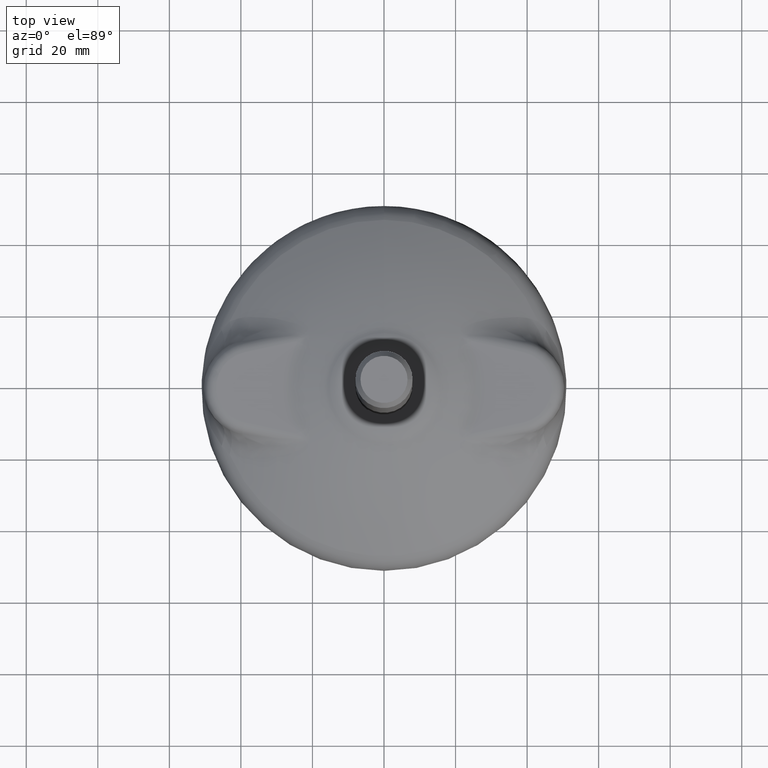
[diagram: clean part render]
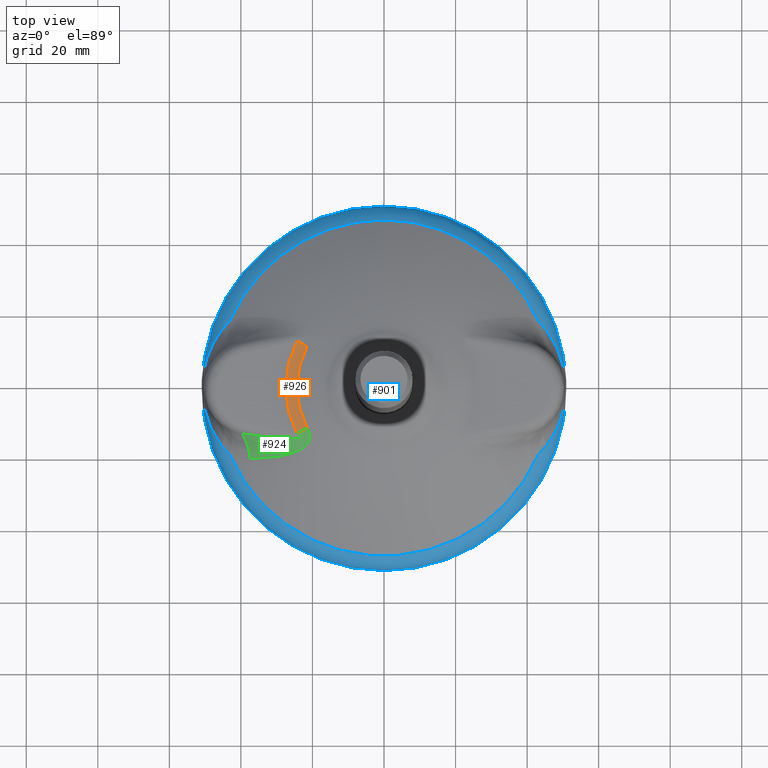
[diagram: same view with three faces highlighted in distinct colors, each labeled with its STEP entity id]
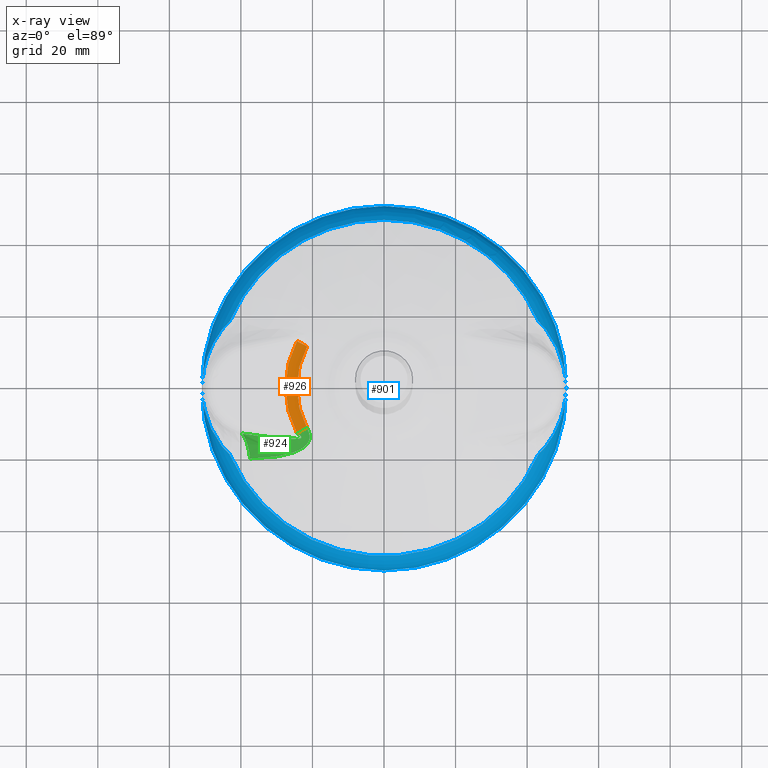
[diagram: x-ray of the same camera — body ghosted, the three highlighted faces saturated]
A machine part, top view with three faces highlighted in distinct colors.
The next image is the same camera in x-ray (body ghosted, the three faces saturated) — at least one of them is partly hidden behind the body in this view.
Their STEP definitions:

[orange] entity #926 — the highlighted toroidal blend (fillet) surface has major radius 27.517 mm and minor (blend) radius 10 mm.
#42=TOROIDAL_SURFACE('',#1044,27.5170021834659,10.);
#177=FACE_OUTER_BOUND('',#244,.T.);
#244=EDGE_LOOP('',(#709,#710,#711,#712));
#280=CIRCLE('',#989,27.5170021834659);
#293=CIRCLE('',#1007,24.3449299520576);
#318=CIRCLE('',#1042,10.);
#320=CIRCLE('',#1045,10.);
#355=VERTEX_POINT('',#1374);
#356=VERTEX_POINT('',#1376);
#380=VERTEX_POINT('',#2734);
#381=VERTEX_POINT('',#2874);
#436=EDGE_CURVE('',#355,#356,#280,.F.);
#468=EDGE_CURVE('',#380,#381,#293,.F.);
#510=EDGE_CURVE('',#355,#381,#318,.T.);
#512=EDGE_CURVE('',#356,#380,#320,.T.);
#709=ORIENTED_EDGE('',*,*,#510,.T.);
#710=ORIENTED_EDGE('',*,*,#468,.F.);
#711=ORIENTED_EDGE('',*,*,#512,.F.);
#712=ORIENTED_EDGE('',*,*,#436,.F.);
#926=ADVANCED_FACE('',(#177),#42,.F.);
#989=AXIS2_PLACEMENT_3D('',#1377,#1120,#1121);
#1007=AXIS2_PLACEMENT_3D('',#2875,#1157,#1158);
#1042=AXIS2_PLACEMENT_3D('',#5057,#1230,#1231);
#1044=AXIS2_PLACEMENT_3D('',#5161,#1234,#1235);
#1045=AXIS2_PLACEMENT_3D('',#5162,#1236,#1237);
#1120=DIRECTION('center_axis',(0.,0.,1.));
#1121=DIRECTION('ref_axis',(1.,0.,0.));
#1157=DIRECTION('center_axis',(0.,0.,-1.));
#1158=DIRECTION('ref_axis',(-1.,0.,0.));
#1230=DIRECTION('center_axis',(0.468711974674446,-0.883351054109736,2.326695E-15));
#1231=DIRECTION('ref_axis',(0.883351054109736,0.468711974674446,0.));
#1234=DIRECTION('center_axis',(0.,0.,1.));
#1235=DIRECTION('ref_axis',(-1.,1.9417460553488E-14,0.));
#1236=DIRECTION('center_axis',(-0.468711974674473,-0.883351054109722,0.));
#1237=DIRECTION('ref_axis',(0.883351054109722,-0.468711974674473,0.));
#1374=CARTESIAN_POINT('',(-24.3071728847044,-12.8975484305336,18.));
#1376=CARTESIAN_POINT('',(-24.3071728847041,12.8975484305341,18.));
#1377=CARTESIAN_POINT('Origin',(0.,-1.131577E-13,18.));
#2734=CARTESIAN_POINT('',(-21.5051195353774,11.4107601911406,18.5164374964506));
#2874=CARTESIAN_POINT('',(-21.5051195353776,-11.4107601911403,18.5164374964506));
#2875=CARTESIAN_POINT('Origin',(0.,-1.131577E-13,18.5164374964506));
#5057=CARTESIAN_POINT('Origin',(-24.3071728847046,-12.8975484305331,28.));
#5161=CARTESIAN_POINT('Origin',(0.,-1.131577E-13,28.));
#5162=CARTESIAN_POINT('Origin',(-24.3071728847039,12.8975484305344,28.));

[blue] entity #901 — the highlighted toroidal blend (fillet) surface has major radius 42.954 mm and minor (blend) radius 8 mm.
#37=TOROIDAL_SURFACE('',#998,42.9539756463875,8.);
#59=B_SPLINE_CURVE_WITH_KNOTS('',3,(#2188,#2189,#2190,#2191,#2192,#2193,
#2194,#2195,#2196,#2197,#2198,#2199,#2200,#2201,#2202,#2203,#2204,#2205,
#2206,#2207,#2208,#2209,#2210,#2211,#2212,#2213,#2214,#2215,#2216,#2217,
#2218,#2219,#2220,#2221,#2222,#2223,#2224,#2225,#2226,#2227,#2228,#2229,
#2230,#2231,#2232,#2233,#2234,#2235,#2236,#2237,#2238,#2239,#2240,#2241,
#2242,#2243,#2244,#2245,#2246,#2247,#2248,#2249,#2250,#2251,#2252,#2253,
#2254,#2255,#2256,#2257,#2258,#2259,#2260,#2261,#2262,#2263,#2264,#2265,
#2266,#2267,#2268,#2269,#2270,#2271,#2272,#2273,#2274,#2275,#2276,#2277,
#2278,#2279,#2280,#2281,#2282,#2283,#2284,#2285,#2286,#2287,#2288,#2289,
#2290,#2291,#2292,#2293,#2294,#2295,#2296,#2297,#2298,#2299),
 .UNSPECIFIED.,.F.,.F.,(4,3,3,3,3,3,3,3,3,3,3,3,3,3,3,3,3,3,3,3,3,3,3,3,
3,3,3,3,3,3,3,3,3,3,3,3,3,4),(0.,0.018222802537615,0.0367503347024783,0.0558525532941425,
0.0625,0.0687576017251877,0.0945705334077094,0.102101619982043,0.125,0.134842332414032,
0.1597757440035,0.185974091750454,0.1875,0.198937669194426,0.236816819499432,
0.249999999999999,0.262062297847113,0.310398075632263,0.324602916335422,
0.374999999999999,0.386787666647561,0.437499999999999,0.448790401114532,
0.479746953367728,0.499999999999999,0.510646529469897,0.582979699784663,
0.633748616733842,0.706626075126714,0.75,0.756430156037369,0.8125,0.817755172613899,
0.848401071251382,0.875,0.878950178210174,0.959672150929535,1.),
 .UNSPECIFIED.);
#60=B_SPLINE_CURVE_WITH_KNOTS('',3,(#2301,#2302,#2303,#2304,#2305,#2306,
#2307,#2308,#2309,#2310,#2311,#2312,#2313),.UNSPECIFIED.,.F.,.F.,(4,3,3,
3,4),(0.,0.277875799666637,0.553106511569451,0.823726431966411,1.),
 .UNSPECIFIED.);
#61=B_SPLINE_CURVE_WITH_KNOTS('',3,(#2324,#2325,#2326,#2327,#2328,#2329,
#2330,#2331,#2332,#2333,#2334,#2335,#2336),.UNSPECIFIED.,.F.,.F.,(4,3,3,
3,4),(0.,0.271047231019559,0.545065131911834,0.823187332568414,1.),
 .UNSPECIFIED.);
#62=B_SPLINE_CURVE_WITH_KNOTS('',3,(#2338,#2339,#2340,#2341,#2342,#2343,
#2344,#2345,#2346,#2347,#2348,#2349,#2350,#2351,#2352,#2353,#2354,#2355,
#2356,#2357,#2358,#2359,#2360,#2361,#2362,#2363,#2364,#2365,#2366,#2367,
#2368,#2369,#2370,#2371,#2372,#2373,#2374,#2375,#2376,#2377,#2378,#2379,
#2380,#2381,#2382,#2383,#2384,#2385,#2386,#2387,#2388,#2389,#2390,#2391,
#2392,#2393,#2394,#2395,#2396,#2397,#2398,#2399,#2400,#2401,#2402,#2403,
#2404,#2405,#2406,#2407,#2408,#2409,#2410,#2411,#2412,#2413,#2414,#2415,
#2416,#2417,#2418,#2419,#2420,#2421,#2422,#2423,#2424,#2425,#2426,#2427,
#2428,#2429,#2430,#2431,#2432,#2433,#2434,#2435,#2436,#2437,#2438,#2439,
#2440,#2441,#2442,#2443),.UNSPECIFIED.,.F.,.F.,(4,3,3,3,3,3,3,3,3,3,3,3,
3,3,3,3,3,3,3,3,3,3,3,3,3,3,3,3,3,3,3,3,3,3,3,4),(0.,0.0806810860999628,
0.121104917920797,0.125000000000001,0.151667460845958,0.182330406107497,
0.187500000000001,0.243683798407299,0.250000000000001,0.322424447799351,
0.366313820985453,0.439038724511029,0.48922374077577,0.500000000000001,
0.562500000000001,0.612932018785015,0.625000000000001,0.675168725348555,
0.726112350710725,0.737673724635573,0.750000000000001,0.784530809777315,
0.800687394774762,0.812500000000001,0.838632208422804,0.862939732890658,
0.864764416845607,0.875,0.897564139640933,0.922735946449632,0.931015970200438,
0.9375,0.956502756556265,0.975098243612388,0.993238224314951,1.),
 .UNSPECIFIED.);
#63=B_SPLINE_CURVE_WITH_KNOTS('',3,(#2445,#2446,#2447,#2448,#2449,#2450,
#2451,#2452,#2453,#2454,#2455,#2456,#2457,#2458,#2459,#2460,#2461,#2462,
#2463,#2464,#2465,#2466,#2467,#2468,#2469,#2470,#2471,#2472,#2473,#2474,
#2475,#2476,#2477,#2478,#2479,#2480,#2481,#2482,#2483,#2484,#2485,#2486,
#2487,#2488,#2489,#2490,#2491,#2492,#2493,#2494,#2495,#2496,#2497,#2498,
#2499,#2500,#2501,#2502,#2503,#2504,#2505,#2506,#2507,#2508,#2509,#2510,
#2511,#2512,#2513,#2514,#2515,#2516,#2517,#2518,#2519,#2520,#2521,#2522,
#2523,#2524,#2525,#2526,#2527,#2528,#2529,#2530,#2531,#2532,#2533,#2534,
#2535,#2536,#2537,#2538,#2539,#2540,#2541,#2542,#2543,#2544,#2545,#2546,
#2547,#2548,#2549,#2550,#2551,#2552,#2553,#2554,#2555,#2556),
 .UNSPECIFIED.,.F.,.F.,(4,3,3,3,3,3,3,3,3,3,3,3,3,3,3,3,3,3,3,3,3,3,3,3,
3,3,3,3,3,3,3,3,3,3,3,3,3,4),(0.,0.0182228025467867,0.0367503347211714,
0.0558525533225901,0.0625,0.0687576017251878,0.0945705334320472,0.102101619982048,
0.125,0.134842332414048,0.159775744032231,0.185974091823288,0.1875,0.198937669194411,
0.236816819557266,0.250000000000001,0.262062297847087,0.310398075511154,
0.324602916335428,0.375000000000001,0.386787666647563,0.437500000000001,
0.448790401114524,0.479746953367743,0.500000000000001,0.510646529469891,
0.582979699794647,0.633748616733815,0.706626075146599,0.750000000000001,
0.756430156037374,0.812500000000001,0.817755172613906,0.848401071251367,
0.875000000000001,0.878950178210172,0.959672151761753,1.),.UNSPECIFIED.);
#64=B_SPLINE_CURVE_WITH_KNOTS('',3,(#2558,#2559,#2560,#2561,#2562,#2563,
#2564,#2565,#2566,#2567,#2568,#2569,#2570),.UNSPECIFIED.,.F.,.F.,(4,3,3,
3,4),(0.,0.277875799663428,0.55310651156872,0.82372643195857,1.),
 .UNSPECIFIED.);
#65=B_SPLINE_CURVE_WITH_KNOTS('',3,(#2574,#2575,#2576,#2577,#2578,#2579,
#2580,#2581,#2582,#2583,#2584,#2585,#2586),.UNSPECIFIED.,.F.,.F.,(4,3,3,
3,4),(0.,0.271047231022452,0.545065131913572,0.823187332572719,1.),
 .UNSPECIFIED.);
#66=B_SPLINE_CURVE_WITH_KNOTS('',3,(#2587,#2588,#2589,#2590,#2591,#2592,
#2593,#2594,#2595,#2596,#2597,#2598,#2599,#2600,#2601,#2602,#2603,#2604,
#2605,#2606,#2607,#2608,#2609,#2610,#2611,#2612,#2613,#2614,#2615,#2616,
#2617,#2618,#2619,#2620,#2621,#2622,#2623,#2624,#2625,#2626,#2627,#2628,
#2629,#2630,#2631,#2632,#2633,#2634,#2635,#2636,#2637,#2638,#2639,#2640,
#2641,#2642,#2643,#2644,#2645,#2646,#2647,#2648,#2649,#2650,#2651,#2652,
#2653,#2654,#2655,#2656,#2657,#2658,#2659,#2660,#2661,#2662,#2663,#2664,
#2665,#2666,#2667,#2668,#2669,#2670,#2671,#2672,#2673,#2674,#2675,#2676,
#2677,#2678,#2679,#2680,#2681,#2682,#2683,#2684,#2685,#2686,#2687,#2688,
#2689,#2690,#2691,#2692),.UNSPECIFIED.,.F.,.F.,(4,3,3,3,3,3,3,3,3,3,3,3,
3,3,3,3,3,3,3,3,3,3,3,3,3,3,3,3,3,3,3,3,3,3,3,4),(0.,0.080681086626353,
0.121104917920788,0.125,0.151667460845902,0.182330406107491,0.1875,0.243683798407294,
0.25,0.322424447801602,0.366313820985555,0.439038724524295,0.489223740775748,
0.5,0.5625,0.612932018785009,0.625000000000001,0.675168725348559,0.726112350690797,
0.737673724635557,0.75,0.784530809746806,0.800687394774753,0.8125,0.838632208422806,
0.862939732887436,0.864764416845613,0.875,0.897564139640971,0.922735946437646,
0.93101597020044,0.9375,0.956502756555314,0.975098243609896,0.993238224310252,
1.),.UNSPECIFIED.);
#152=FACE_OUTER_BOUND('',#218,.T.);
#218=EDGE_LOOP('',(#586,#587,#588,#589,#590,#591,#592,#593,#594,#595,#596,
#597,#598,#599,#600));
#285=CIRCLE('',#999,46.9837143607323);
#286=CIRCLE('',#1000,8.);
#287=CIRCLE('',#1001,50.9491029525027);
#288=CIRCLE('',#1002,50.9491029525027);
#289=CIRCLE('',#1003,46.9837143607323);
#290=CIRCLE('',#1004,46.9837143607323);
#365=VERTEX_POINT('',#2186);
#366=VERTEX_POINT('',#2187);
#367=VERTEX_POINT('',#2300);
#368=VERTEX_POINT('',#2314);
#369=VERTEX_POINT('',#2316);
#370=VERTEX_POINT('',#2318);
#371=VERTEX_POINT('',#2321);
#372=VERTEX_POINT('',#2323);
#373=VERTEX_POINT('',#2337);
#374=VERTEX_POINT('',#2444);
#375=VERTEX_POINT('',#2557);
#376=VERTEX_POINT('',#2571);
#377=VERTEX_POINT('',#2573);
#450=EDGE_CURVE('',#365,#366,#59,.T.);
#451=EDGE_CURVE('',#366,#367,#60,.T.);
#452=EDGE_CURVE('',#368,#367,#285,.T.);
#453=EDGE_CURVE('',#368,#369,#286,.T.);
#454=EDGE_CURVE('',#369,#370,#287,.T.);
#455=EDGE_CURVE('',#370,#369,#288,.T.);
#456=EDGE_CURVE('',#371,#368,#289,.T.);
#457=EDGE_CURVE('',#371,#372,#61,.T.);
#458=EDGE_CURVE('',#372,#373,#62,.T.);
#459=EDGE_CURVE('',#373,#374,#63,.T.);
#460=EDGE_CURVE('',#374,#375,#64,.T.);
#461=EDGE_CURVE('',#376,#375,#290,.T.);
#462=EDGE_CURVE('',#376,#377,#65,.T.);
#463=EDGE_CURVE('',#377,#365,#66,.T.);
#586=ORIENTED_EDGE('',*,*,#450,.T.);
#587=ORIENTED_EDGE('',*,*,#451,.T.);
#588=ORIENTED_EDGE('',*,*,#452,.F.);
#589=ORIENTED_EDGE('',*,*,#453,.T.);
#590=ORIENTED_EDGE('',*,*,#454,.T.);
#591=ORIENTED_EDGE('',*,*,#455,.T.);
#592=ORIENTED_EDGE('',*,*,#453,.F.);
#593=ORIENTED_EDGE('',*,*,#456,.F.);
#594=ORIENTED_EDGE('',*,*,#457,.T.);
#595=ORIENTED_EDGE('',*,*,#458,.T.);
#596=ORIENTED_EDGE('',*,*,#459,.T.);
#597=ORIENTED_EDGE('',*,*,#460,.T.);
#598=ORIENTED_EDGE('',*,*,#461,.F.);
#599=ORIENTED_EDGE('',*,*,#462,.T.);
#600=ORIENTED_EDGE('',*,*,#463,.T.);
#901=ADVANCED_FACE('',(#152),#37,.T.);
#998=AXIS2_PLACEMENT_3D('',#2185,#1139,#1140);
#999=AXIS2_PLACEMENT_3D('',#2315,#1141,#1142);
#1000=AXIS2_PLACEMENT_3D('',#2317,#1143,#1144);
#1001=AXIS2_PLACEMENT_3D('',#2319,#1145,#1146);
#1002=AXIS2_PLACEMENT_3D('',#2320,#1147,#1148);
#1003=AXIS2_PLACEMENT_3D('',#2322,#1149,#1150);
#1004=AXIS2_PLACEMENT_3D('',#2572,#1151,#1152);
#1139=DIRECTION('center_axis',(0.,1.171453E-15,1.));
#1140=DIRECTION('ref_axis',(0.,-1.,1.17223431473434E-15));
#1141=DIRECTION('center_axis',(0.,1.171453E-15,1.));
#1142=DIRECTION('ref_axis',(0.,-1.,1.171453E-15));
#1143=DIRECTION('center_axis',(-1.,-1.22464679914735E-16,1.43461616680156E-31));
#1144=DIRECTION('ref_axis',(-1.22464679914735E-16,1.,-1.17114487763886E-15));
#1145=DIRECTION('center_axis',(0.,1.171453E-15,1.));
#1146=DIRECTION('ref_axis',(0.,-1.,1.171453E-15));
#1147=DIRECTION('center_axis',(0.,1.171453E-15,1.));
#1148=DIRECTION('ref_axis',(0.,-1.,1.171453E-15));
#1149=DIRECTION('center_axis',(0.,1.171453E-15,1.));
#1150=DIRECTION('ref_axis',(0.,-1.,1.171453E-15));
#1151=DIRECTION('center_axis',(0.,1.171453E-15,1.));
#1152=DIRECTION('ref_axis',(0.,-1.,1.171453E-15));
#2185=CARTESIAN_POINT('Origin',(0.,1.581797E-15,1.35028559827396));
#2186=CARTESIAN_POINT('',(-50.8753258163308,2.803829E-13,2.4693081561962));
#2187=CARTESIAN_POINT('',(-45.3902886219601,16.1682992003729,7.40400009036721));
#2188=CARTESIAN_POINT('Ctrl Pts',(-50.8753258163309,2.79212417075847E-13,
2.46930815619604));
#2189=CARTESIAN_POINT('Ctrl Pts',(-50.8753258162163,0.110607063480051,2.46930815700715));
#2190=CARTESIAN_POINT('Ctrl Pts',(-50.87457932247,0.22085541299961,2.47215559616056));
#2191=CARTESIAN_POINT('Ctrl Pts',(-50.8730941625265,0.330752815448566,2.47764053878972));
#2192=CARTESIAN_POINT('Ctrl Pts',(-50.8715841670926,0.4424879700443,2.48321720301436));
#2193=CARTESIAN_POINT('Ctrl Pts',(-50.8693105987866,0.553860409802232,2.49152017495504));
#2194=CARTESIAN_POINT('Ctrl Pts',(-50.8662903397049,0.664900840769425,2.50227986785055));
#2195=CARTESIAN_POINT('Ctrl Pts',(-50.8631763983192,0.779385520432836,2.51337330457166));
#2196=CARTESIAN_POINT('Ctrl Pts',(-50.8592687186123,0.893517328943798,2.52707811978757));
#2197=CARTESIAN_POINT('Ctrl Pts',(-50.8545949823728,1.0073528322612,2.54304904741494));
#2198=CARTESIAN_POINT('Ctrl Pts',(-50.8529685528343,1.04696684033601,2.54860682541525));
#2199=CARTESIAN_POINT('Ctrl Pts',(-50.8512494341136,1.08654516004333,2.55443860618742));
#2200=CARTESIAN_POINT('Ctrl Pts',(-50.8494390430488,1.12609077373146,2.56052853637063));
#2201=CARTESIAN_POINT('Ctrl Pts',(-50.8477348238573,1.16331720237216,2.5662613175883));
#2202=CARTESIAN_POINT('Ctrl Pts',(-50.8459504829558,1.2004990694823,2.5722201905387));
#2203=CARTESIAN_POINT('Ctrl Pts',(-50.8440871878396,1.23764505613852,2.57839190145265));
#2204=CARTESIAN_POINT('Ctrl Pts',(-50.8364009988412,1.39087417776469,2.60385052908387));
#2205=CARTESIAN_POINT('Ctrl Pts',(-50.8273476532781,1.54360911913719,2.63290110775226));
#2206=CARTESIAN_POINT('Ctrl Pts',(-50.8169539850645,1.69610558866171,2.66472881523597));
#2207=CARTESIAN_POINT('Ctrl Pts',(-50.8139215664263,1.74059740107552,2.67401475080774));
#2208=CARTESIAN_POINT('Ctrl Pts',(-50.8107750285907,1.78506891545836,2.68353675667348));
#2209=CARTESIAN_POINT('Ctrl Pts',(-50.8075149736743,1.8295264970545,2.69327371484963));
#2210=CARTESIAN_POINT('Ctrl Pts',(-50.7976027285262,1.96470043085801,2.72287908006961));
#2211=CARTESIAN_POINT('Ctrl Pts',(-50.7867017782433,2.09896831495645,2.75429451485324));
#2212=CARTESIAN_POINT('Ctrl Pts',(-50.7748078058765,2.23281726533295,2.78716920398462));
#2213=CARTESIAN_POINT('Ctrl Pts',(-50.7696954603889,2.29034910216341,2.8012996192448));
#2214=CARTESIAN_POINT('Ctrl Pts',(-50.7644013762381,2.34777699644241,2.81569595633637));
#2215=CARTESIAN_POINT('Ctrl Pts',(-50.7589276582753,2.40512148608375,2.83032224755346));
#2216=CARTESIAN_POINT('Ctrl Pts',(-50.7450611826117,2.55039129637558,2.86737477977876));
#2217=CARTESIAN_POINT('Ctrl Pts',(-50.7300441234678,2.69515702942168,2.90587191649146));
#2218=CARTESIAN_POINT('Ctrl Pts',(-50.7138852525056,2.83947272023835,2.94550660831346));
#2219=CARTESIAN_POINT('Ctrl Pts',(-50.6969066004207,2.99110991757055,2.98715207008551));
#2220=CARTESIAN_POINT('Ctrl Pts',(-50.6786671885925,3.1422504986276,3.03005322638088));
#2221=CARTESIAN_POINT('Ctrl Pts',(-50.6591939994391,3.29299673133636,3.07381677369676));
#2222=CARTESIAN_POINT('Ctrl Pts',(-50.6580597943259,3.3017768621408,3.07636575726334));
#2223=CARTESIAN_POINT('Ctrl Pts',(-50.6569214086251,3.31055566505588,3.07891765710393));
#2224=CARTESIAN_POINT('Ctrl Pts',(-50.6557788494881,3.3193331638458,3.08147239216252));
#2225=CARTESIAN_POINT('Ctrl Pts',(-50.647214629819,3.38512619402532,3.10062178367302));
#2226=CARTESIAN_POINT('Ctrl Pts',(-50.6384154546783,3.45083360254808,3.11993621156064));
#2227=CARTESIAN_POINT('Ctrl Pts',(-50.6293823112034,3.51647867762683,3.13938712054669));
#2228=CARTESIAN_POINT('Ctrl Pts',(-50.5994664434166,3.73388133400922,3.2038044325468));
#2229=CARTESIAN_POINT('Ctrl Pts',(-50.5669425548929,3.95069357194471,3.26984880011236));
#2230=CARTESIAN_POINT('Ctrl Pts',(-50.5318723842772,4.16675564378585,3.33693199739761));
#2231=CARTESIAN_POINT('Ctrl Pts',(-50.5196668203802,4.24195229601993,3.36027913932781));
#2232=CARTESIAN_POINT('Ctrl Pts',(-50.5071530309862,4.31705827665232,3.3837517316342));
#2233=CARTESIAN_POINT('Ctrl Pts',(-50.4943342551675,4.39206747523708,3.40732381705424));
#2234=CARTESIAN_POINT('Ctrl Pts',(-50.4826053789715,4.46069911496649,3.42889171678843));
#2235=CARTESIAN_POINT('Ctrl Pts',(-50.47062079107,4.52924838336984,3.4505448057103));
#2236=CARTESIAN_POINT('Ctrl Pts',(-50.4583827672784,4.59771072218007,3.47226429089651));
#2237=CARTESIAN_POINT('Ctrl Pts',(-50.4093428243075,4.87205151838042,3.55929813990896));
#2238=CARTESIAN_POINT('Ctrl Pts',(-50.356234303129,5.14501326697966,3.64744851954726));
#2239=CARTESIAN_POINT('Ctrl Pts',(-50.29905285438,5.41681574715197,3.73625815069382));
#2240=CARTESIAN_POINT('Ctrl Pts',(-50.2822484621084,5.49669262325671,3.76235738238407));
#2241=CARTESIAN_POINT('Ctrl Pts',(-50.2650925266438,5.57646962369032,3.78851342033886));
#2242=CARTESIAN_POINT('Ctrl Pts',(-50.2475854715019,5.65615289532333,3.81471436393785));
#2243=CARTESIAN_POINT('Ctrl Pts',(-50.1854725241521,5.93885965642506,3.90767219248679));
#2244=CARTESIAN_POINT('Ctrl Pts',(-50.1189358735009,6.22036604798966,4.0012109572267));
#2245=CARTESIAN_POINT('Ctrl Pts',(-50.0479758520503,6.50068655446503,4.09501065013845));
#2246=CARTESIAN_POINT('Ctrl Pts',(-50.0313786004369,6.56625234606519,4.11695000518221));
#2247=CARTESIAN_POINT('Ctrl Pts',(-50.0145389268475,6.63175499554447,4.1389046542049));
#2248=CARTESIAN_POINT('Ctrl Pts',(-49.9974566048136,6.69719662760427,4.16087105638765));
#2249=CARTESIAN_POINT('Ctrl Pts',(-49.9239658593319,6.97873647423969,4.25537385692925));
#2250=CARTESIAN_POINT('Ctrl Pts',(-49.8459820948975,7.25913842180201,4.35010060300977));
#2251=CARTESIAN_POINT('Ctrl Pts',(-49.7634639917238,7.53844802075987,4.4448677797871));
#2252=CARTESIAN_POINT('Ctrl Pts',(-49.745092474926,7.60063244807576,4.46596638376715));
#2253=CARTESIAN_POINT('Ctrl Pts',(-49.7264970974871,7.66275971469967,4.48706620930678));
#2254=CARTESIAN_POINT('Ctrl Pts',(-49.7076756537454,7.72483657135678,4.50816740345873));
#2255=CARTESIAN_POINT('Ctrl Pts',(-49.6560701349726,7.89504181360864,4.56602364902019));
#2256=CARTESIAN_POINT('Ctrl Pts',(-49.6027333488479,8.06495285647541,4.623922229906));
#2257=CARTESIAN_POINT('Ctrl Pts',(-49.5478334921058,8.23402996434397,4.68164757635487));
#2258=CARTESIAN_POINT('Ctrl Pts',(-49.5119157532824,8.34464714555019,4.71941386647434));
#2259=CARTESIAN_POINT('Ctrl Pts',(-49.4753125695062,8.45496369149038,4.75712515107837));
#2260=CARTESIAN_POINT('Ctrl Pts',(-49.4380130570635,8.5650140996239,4.79478591911235));
#2261=CARTESIAN_POINT('Ctrl Pts',(-49.4184056189509,8.62286489780953,4.81458326042168));
#2262=CARTESIAN_POINT('Ctrl Pts',(-49.398607996671,8.6806354247502,4.83436436223574));
#2263=CARTESIAN_POINT('Ctrl Pts',(-49.3786201627011,8.73832627685857,4.85412836838103));
#2264=CARTESIAN_POINT('Ctrl Pts',(-49.2428216000936,9.13028144337157,4.98840623110155));
#2265=CARTESIAN_POINT('Ctrl Pts',(-49.0982628381649,9.51858448574543,5.12188513199418));
#2266=CARTESIAN_POINT('Ctrl Pts',(-48.9448513540605,9.90327954481626,5.25436333466636));
#2267=CARTESIAN_POINT('Ctrl Pts',(-48.8371755137557,10.1732877778266,5.3473466069296));
#2268=CARTESIAN_POINT('Ctrl Pts',(-48.7251394282304,10.441519291842,5.43983696378242));
#2269=CARTESIAN_POINT('Ctrl Pts',(-48.6087238645811,10.7079977451092,5.53176588523455));
#2270=CARTESIAN_POINT('Ctrl Pts',(-48.4416123541145,11.0905206263835,5.66372745839428));
#2271=CARTESIAN_POINT('Ctrl Pts',(-48.2654786363546,11.46941895834,5.79454016392908));
#2272=CARTESIAN_POINT('Ctrl Pts',(-48.0801068568672,11.8446349802538,5.92403085447858));
#2273=CARTESIAN_POINT('Ctrl Pts',(-47.9697805390398,12.0679494577979,6.00109884789578));
#2274=CARTESIAN_POINT('Ctrl Pts',(-47.8561827805757,12.2899600408784,6.07769867438771));
#2275=CARTESIAN_POINT('Ctrl Pts',(-47.739275999132,12.5106582124244,6.15379496881591));
#2276=CARTESIAN_POINT('Ctrl Pts',(-47.7219446451283,12.5433765722304,6.16507619477064));
#2277=CARTESIAN_POINT('Ctrl Pts',(-47.7045404932922,12.5760661961864,6.17634642851798));
#2278=CARTESIAN_POINT('Ctrl Pts',(-47.6870634298822,12.608727065066,6.18760555552343));
#2279=CARTESIAN_POINT('Ctrl Pts',(-47.5346664720745,12.8935241696959,6.28578318771182));
#2280=CARTESIAN_POINT('Ctrl Pts',(-47.3767111081999,13.1761275104673,6.38311585242439));
#2281=CARTESIAN_POINT('Ctrl Pts',(-47.213048375008,13.4564975928413,6.47952078055328));
#2282=CARTESIAN_POINT('Ctrl Pts',(-47.197709008022,13.4827754112641,6.48855637798575));
#2283=CARTESIAN_POINT('Ctrl Pts',(-47.1823186149607,13.509035156747,6.49758436435568));
#2284=CARTESIAN_POINT('Ctrl Pts',(-47.1668764291442,13.5352778603835,6.50660503841123));
#2285=CARTESIAN_POINT('Ctrl Pts',(-47.076824266058,13.6883139820689,6.55920971632742));
#2286=CARTESIAN_POINT('Ctrl Pts',(-46.9849781841483,13.8408125138142,6.61157990775505));
#2287=CARTESIAN_POINT('Ctrl Pts',(-46.8917229840399,13.9921048239597,6.66347491636624));
#2288=CARTESIAN_POINT('Ctrl Pts',(-46.8107826777215,14.1234181009949,6.70851688602053));
#2289=CARTESIAN_POINT('Ctrl Pts',(-46.7286905631571,14.253978587648,6.75325452336524));
#2290=CARTESIAN_POINT('Ctrl Pts',(-46.6453537741147,14.3839144136904,6.79772426580648));
#2291=CARTESIAN_POINT('Ctrl Pts',(-46.6329775174883,14.4032110430248,6.80432841927685));
#2292=CARTESIAN_POINT('Ctrl Pts',(-46.6205749859043,14.4224920252269,6.810926023635));
#2293=CARTESIAN_POINT('Ctrl Pts',(-46.6081461502561,14.4417573520859,6.81751705161709));
#2294=CARTESIAN_POINT('Ctrl Pts',(-46.354162638944,14.8354447014663,6.95220484357356));
#2295=CARTESIAN_POINT('Ctrl Pts',(-46.0892257821214,15.2226144602278,7.08416014437246));
#2296=CARTESIAN_POINT('Ctrl Pts',(-45.8129343164146,15.6030877488243,7.21308263517687));
#2297=CARTESIAN_POINT('Ctrl Pts',(-45.6749020043547,15.793168204504,7.27749095642819));
#2298=CARTESIAN_POINT('Ctrl Pts',(-45.5340360468087,15.9815780203688,7.34114240306936));
#2299=CARTESIAN_POINT('Ctrl Pts',(-45.3902886219601,16.1682992003729,7.40400009036722));
#2300=CARTESIAN_POINT('',(-43.1479021368188,18.5937612204306,8.26123386129241));
#2301=CARTESIAN_POINT('Ctrl Pts',(-45.3902886219601,16.1682992003729,7.40400009036721));
#2302=CARTESIAN_POINT('Ctrl Pts',(-45.2032649082044,16.4112342550911,7.48578157708889));
#2303=CARTESIAN_POINT('Ctrl Pts',(-45.0106625578263,16.6490105442405,7.5674382432531));
#2304=CARTESIAN_POINT('Ctrl Pts',(-44.8123375053262,16.8817028195825,7.64854579554296));
#2305=CARTESIAN_POINT('Ctrl Pts',(-44.6159003004554,17.1121801071818,7.72888128853737));
#2306=CARTESIAN_POINT('Ctrl Pts',(-44.4138482970492,17.3376695527692,7.80867811655563));
#2307=CARTESIAN_POINT('Ctrl Pts',(-44.2060500195009,17.5582273957264,7.8874768241038));
#2308=CARTESIAN_POINT('Ctrl Pts',(-44.0017328742957,17.7750903522306,7.96495545945174));
#2309=CARTESIAN_POINT('Ctrl Pts',(-43.7918598841924,17.9871853429446,8.04146908180662));
#2310=CARTESIAN_POINT('Ctrl Pts',(-43.5763217899797,18.1945526504998,8.11653528801766));
#2311=CARTESIAN_POINT('Ctrl Pts',(-43.4359268447063,18.3296253943786,8.16543112683158));
#2312=CARTESIAN_POINT('Ctrl Pts',(-43.2931286299311,18.4626920008113,8.21371192422786));
#2313=CARTESIAN_POINT('Ctrl Pts',(-43.1479021368187,18.5937612204306,8.26123386129196));
#2314=CARTESIAN_POINT('',(-5.75384554039243E-15,46.9837143607323,8.26123386129238));
#2315=CARTESIAN_POINT('Origin',(0.,1.93553E-14,8.26123386129243));
#2316=CARTESIAN_POINT('',(-6.23946558502113E-15,50.9491029525027,1.62946181325611));
#2317=CARTESIAN_POINT('Origin',(-5.26034487860018E-15,42.9539756463875,
1.35028559827391));
#2318=CARTESIAN_POINT('',(0.,-50.9491029525027,1.62946181325623));
#2319=CARTESIAN_POINT('Origin',(0.,3.817677E-15,1.62946181325617));
#2320=CARTESIAN_POINT('Origin',(0.,3.817677E-15,1.62946181325617));
#2321=CARTESIAN_POINT('',(43.147902136819,18.5937612204301,8.26123386129241));
#2322=CARTESIAN_POINT('Origin',(0.,1.93553E-14,8.26123386129243));
#2323=CARTESIAN_POINT('',(45.3902886219603,16.1682992003723,7.4040000903672));
#2324=CARTESIAN_POINT('Ctrl Pts',(43.1479021368189,18.59376122043,8.26123386129195));
#2325=CARTESIAN_POINT('Ctrl Pts',(43.3712098015352,18.3922225016874,8.1881617064726));
#2326=CARTESIAN_POINT('Ctrl Pts',(43.5887749171552,18.1859616845277,8.11329755737715));
#2327=CARTESIAN_POINT('Ctrl Pts',(43.8006927752545,17.9749452717999,8.03715616061235));
#2328=CARTESIAN_POINT('Ctrl Pts',(44.0149332469963,17.761616125245,7.96018025632433));
#2329=CARTESIAN_POINT('Ctrl Pts',(44.2234025158967,17.5434268078087,7.88189899279334));
#2330=CARTESIAN_POINT('Ctrl Pts',(44.426220713816,17.3203309768616,7.80279629172627));
#2331=CARTESIAN_POINT('Ctrl Pts',(44.6320767668506,17.0938935679979,7.72250877318456));
#2332=CARTESIAN_POINT('Ctrl Pts',(44.8321117297822,16.8624017703644,7.64137504987025));
#2333=CARTESIAN_POINT('Ctrl Pts',(45.0264653884418,16.6257916935631,7.55985147076806));
#2334=CARTESIAN_POINT('Ctrl Pts',(45.1500232659919,16.4753698332381,7.5080238876208));
#2335=CARTESIAN_POINT('Ctrl Pts',(45.2712852336056,16.3228790345604,7.45603773751435));
#2336=CARTESIAN_POINT('Ctrl Pts',(45.3902886219603,16.1682992003723,7.40400009036722));
#2337=CARTESIAN_POINT('',(50.8753258163309,-5.135288E-14,2.46930815619605));
#2338=CARTESIAN_POINT('Ctrl Pts',(45.3902886219603,16.1682992003723,7.4040000903672));
#2339=CARTESIAN_POINT('Ctrl Pts',(45.6782656786934,15.7942304759805,7.27807385690588));
#2340=CARTESIAN_POINT('Ctrl Pts',(45.9546680718156,15.4133931075555,7.14896543257678));
#2341=CARTESIAN_POINT('Ctrl Pts',(46.2198883889244,15.0259439163735,7.01697321463073));
#2342=CARTESIAN_POINT('Ctrl Pts',(46.3527723399534,14.8318193488874,6.9508408473334));
#2343=CARTESIAN_POINT('Ctrl Pts',(46.4828496013306,14.6360357087931,6.88398465192394));
#2344=CARTESIAN_POINT('Ctrl Pts',(46.6101717342908,14.4386170945499,6.81644269978518));
#2345=CARTESIAN_POINT('Ctrl Pts',(46.6224399962551,14.4195946102429,6.80993462186381));
#2346=CARTESIAN_POINT('Ctrl Pts',(46.6346826022783,14.4005568926205,6.80342014405005));
#2347=CARTESIAN_POINT('Ctrl Pts',(46.6468995805474,14.381503949665,6.79689929261033));
#2348=CARTESIAN_POINT('Ctrl Pts',(46.730542436596,14.2510590450556,6.7522546492075));
#2349=CARTESIAN_POINT('Ctrl Pts',(46.8129315194232,14.1199839015947,6.70733982983232));
#2350=CARTESIAN_POINT('Ctrl Pts',(46.8941548704487,13.9881586698541,6.66212132632116));
#2351=CARTESIAN_POINT('Ctrl Pts',(46.9875476077941,13.8365825641161,6.6101279061009));
#2352=CARTESIAN_POINT('Ctrl Pts',(47.079529253068,13.683791767217,6.55765628453577));
#2353=CARTESIAN_POINT('Ctrl Pts',(47.1697363674864,13.5304164267166,6.50493395443748));
#2354=CARTESIAN_POINT('Ctrl Pts',(47.184944761324,13.5045582380544,6.49604527680557));
#2355=CARTESIAN_POINT('Ctrl Pts',(47.2001014492015,13.4786859589272,6.48715034792935));
#2356=CARTESIAN_POINT('Ctrl Pts',(47.2152071530494,13.4527986783694,6.47824890844709));
#2357=CARTESIAN_POINT('Ctrl Pts',(47.3793778475833,13.1714524483917,6.38150694151399));
#2358=CARTESIAN_POINT('Ctrl Pts',(47.5377276770702,12.8879869824101,6.28387565502356));
#2359=CARTESIAN_POINT('Ctrl Pts',(47.69042404649,12.6024447951482,6.18543983688551));
#2360=CARTESIAN_POINT('Ctrl Pts',(47.7075902239125,12.570344046016,6.1743736489643));
#2361=CARTESIAN_POINT('Ctrl Pts',(47.7246851466322,12.5382171346855,6.16329729807213));
#2362=CARTESIAN_POINT('Ctrl Pts',(47.7417089405577,12.5060640881292,6.15221089543004));
#2363=CARTESIAN_POINT('Ctrl Pts',(47.9369115249605,12.1373825937647,6.02508914707375));
#2364=CARTESIAN_POINT('Ctrl Pts',(48.1227671149964,11.7652530025143,5.89663698632211));
#2365=CARTESIAN_POINT('Ctrl Pts',(48.2994936404215,11.3897225715613,5.76702178661228));
#2366=CARTESIAN_POINT('Ctrl Pts',(48.4065902999329,11.1621503120876,5.68847469314439));
#2367=CARTESIAN_POINT('Ctrl Pts',(48.5103353969585,10.9333294751464,5.60950062002869));
#2368=CARTESIAN_POINT('Ctrl Pts',(48.610785962323,10.703274031424,5.53013790383534));
#2369=CARTESIAN_POINT('Ctrl Pts',(48.7772330346985,10.3220710491142,5.39863349947268));
#2370=CARTESIAN_POINT('Ctrl Pts',(48.9346269593494,9.9374876194546,5.2660536476363));
#2371=CARTESIAN_POINT('Ctrl Pts',(49.0830598140507,9.54947052388027,5.13260200184905));
#2372=CARTESIAN_POINT('Ctrl Pts',(49.185488347693,9.28171294279876,5.04051149791274));
#2373=CARTESIAN_POINT('Ctrl Pts',(49.2836506684443,9.01232074625034,4.94800596011341));
#2374=CARTESIAN_POINT('Ctrl Pts',(49.3775894747659,8.74128377761508,4.85515334694099));
#2375=CARTESIAN_POINT('Ctrl Pts',(49.3977610120789,8.68308384363568,4.835215048547));
#2376=CARTESIAN_POINT('Ctrl Pts',(49.4177378438479,8.62480889779597,4.81526018386286));
#2377=CARTESIAN_POINT('Ctrl Pts',(49.4375198684076,8.56645783308837,4.79528994778484));
#2378=CARTESIAN_POINT('Ctrl Pts',(49.5522513823079,8.22803413073117,4.67946684730952));
#2379=CARTESIAN_POINT('Ctrl Pts',(49.6604169133795,7.88704253711166,4.56315066818992));
#2380=CARTESIAN_POINT('Ctrl Pts',(49.7620058936505,7.54341053233032,4.44655342906142));
#2381=CARTESIAN_POINT('Ctrl Pts',(49.8439792914325,7.2661296408061,4.35246968259728));
#2382=CARTESIAN_POINT('Ctrl Pts',(49.9216338463202,6.9872536875823,4.25825504932372));
#2383=CARTESIAN_POINT('Ctrl Pts',(49.99506431886,6.70635183457992,4.16394645539571));
#2384=CARTESIAN_POINT('Ctrl Pts',(50.0126356472456,6.63913425402384,4.14137915852055));
#2385=CARTESIAN_POINT('Ctrl Pts',(50.0299452920541,6.57187176905686,4.11883136498067));
#2386=CARTESIAN_POINT('Ctrl Pts',(50.0469945088809,6.50456081578067,4.09630655271259));
#2387=CARTESIAN_POINT('Ctrl Pts',(50.1178711087988,6.22473731691171,4.00266693726457));
#2388=CARTESIAN_POINT('Ctrl Pts',(50.1842980912264,5.94389531609982,3.90934151928844));
#2389=CARTESIAN_POINT('Ctrl Pts',(50.246236607655,5.66228966455679,3.81673185011885));
#2390=CARTESIAN_POINT('Ctrl Pts',(50.3091318188549,5.37633436646209,3.7226917432931));
#2391=CARTESIAN_POINT('Ctrl Pts',(50.3674304742042,5.08948978214681,3.62933616260856));
#2392=CARTESIAN_POINT('Ctrl Pts',(50.4211585822691,4.80150134403279,3.53719686052852));
#2393=CARTESIAN_POINT('Ctrl Pts',(50.4333518791379,4.73614396132988,3.51628635569207));
#2394=CARTESIAN_POINT('Ctrl Pts',(50.4453099215349,4.67072779308073,3.49543841085186));
#2395=CARTESIAN_POINT('Ctrl Pts',(50.4570332689812,4.60525010335763,3.47465908303914));
#2396=CARTESIAN_POINT('Ctrl Pts',(50.4695322340486,4.53544040435475,3.45250499320758));
#2397=CARTESIAN_POINT('Ctrl Pts',(50.4817646268728,4.46556348354688,3.43042646682503));
#2398=CARTESIAN_POINT('Ctrl Pts',(50.4937302532171,4.39560766462542,3.40843837409745));
#2399=CARTESIAN_POINT('Ctrl Pts',(50.527250741357,4.19963353581728,3.34684096329049));
#2400=CARTESIAN_POINT('Ctrl Pts',(50.5586720732671,4.00309280755024,3.2859514251386));
#2401=CARTESIAN_POINT('Ctrl Pts',(50.5879739245247,3.80587277375512,3.22615655822958));
#2402=CARTESIAN_POINT('Ctrl Pts',(50.6016839375096,3.71359569540802,3.19817919957924));
#2403=CARTESIAN_POINT('Ctrl Pts',(50.6149302887577,3.62117038630822,3.17044109357793));
#2404=CARTESIAN_POINT('Ctrl Pts',(50.6277126314285,3.52858808656156,3.14297959105721));
#2405=CARTESIAN_POINT('Ctrl Pts',(50.6370582182495,3.46089815345225,3.12290159262993));
#2406=CARTESIAN_POINT('Ctrl Pts',(50.6461565593643,3.39313233855182,3.10296427284463));
#2407=CARTESIAN_POINT('Ctrl Pts',(50.6550058674253,3.32526741336237,3.08320003413277));
#2408=CARTESIAN_POINT('Ctrl Pts',(50.6745825787634,3.17513453955234,3.03947697766146));
#2409=CARTESIAN_POINT('Ctrl Pts',(50.6929461871723,3.02454700644136,2.99656199756095));
#2410=CARTESIAN_POINT('Ctrl Pts',(50.7100658830254,2.87339142610479,2.95484629142206));
#2411=CARTESIAN_POINT('Ctrl Pts',(50.7259901944766,2.73279029863645,2.91604338845806));
#2412=CARTESIAN_POINT('Ctrl Pts',(50.7408384290341,2.59169759597404,2.87827818857741));
#2413=CARTESIAN_POINT('Ctrl Pts',(50.7545998360521,2.45005793091032,2.84183520603702));
#2414=CARTESIAN_POINT('Ctrl Pts',(50.7556328585064,2.43942551852428,2.83909955413631));
#2415=CARTESIAN_POINT('Ctrl Pts',(50.7566597629531,2.42879004219565,2.83637133763081));
#2416=CARTESIAN_POINT('Ctrl Pts',(50.7576805478876,2.4181514875467,2.8336506692719));
#2417=CARTESIAN_POINT('Ctrl Pts',(50.7634066513324,2.35847440732881,2.81838905251489));
#2418=CARTESIAN_POINT('Ctrl Pts',(50.7689396241475,2.29869420967078,2.80337056581916));
#2419=CARTESIAN_POINT('Ctrl Pts',(50.774276910645,2.23878529183893,2.78863572429716));
#2420=CARTESIAN_POINT('Ctrl Pts',(50.786042852655,2.106717273114,2.75615305900351));
#2421=CARTESIAN_POINT('Ctrl Pts',(50.7968452468722,1.97420655397383,2.72507773056062));
#2422=CARTESIAN_POINT('Ctrl Pts',(50.8066926160218,1.84070544998879,2.69572785646965));
#2423=CARTESIAN_POINT('Ctrl Pts',(50.8176780148782,1.69177604023797,2.66298610906718));
#2424=CARTESIAN_POINT('Ctrl Pts',(50.8274000359314,1.54252617981,2.63261133023817));
#2425=CARTESIAN_POINT('Ctrl Pts',(50.8358212486972,1.39292940444747,2.6054205979322));
#2426=CARTESIAN_POINT('Ctrl Pts',(50.8385913256424,1.34372098399281,2.59647646805681));
#2427=CARTESIAN_POINT('Ctrl Pts',(50.841220600012,1.29447480214407,2.58787647466091));
#2428=CARTESIAN_POINT('Ctrl Pts',(50.8437075670571,1.24518928670314,2.57964875651675));
#2429=CARTESIAN_POINT('Ctrl Pts',(50.8456550938899,1.20659413765243,2.57320568687894));
#2430=CARTESIAN_POINT('Ctrl Pts',(50.8475174447443,1.16796006602266,2.56699135916656));
#2431=CARTESIAN_POINT('Ctrl Pts',(50.8492933624733,1.12927606952389,2.56102048201844));
#2432=CARTESIAN_POINT('Ctrl Pts',(50.8544980474165,1.01590481880274,2.54352162276263));
#2433=CARTESIAN_POINT('Ctrl Pts',(50.8589518471389,0.902265269068922,2.52814455876549));
#2434=CARTESIAN_POINT('Ctrl Pts',(50.8626243735229,0.788294252272731,2.51524827700706));
#2435=CARTESIAN_POINT('Ctrl Pts',(50.8662181898535,0.67676587683249,2.50262839000273));
#2436=CARTESIAN_POINT('Ctrl Pts',(50.8690638542946,0.564919997618884,2.49238428443648));
#2437=CARTESIAN_POINT('Ctrl Pts',(50.871141177469,0.452717642963231,2.48480810735351));
#2438=CARTESIAN_POINT('Ctrl Pts',(50.8731676155065,0.343263744708621,2.47741751276088));
#2439=CARTESIAN_POINT('Ctrl Pts',(50.8744628974071,0.233470575668096,2.47256583908433));
#2440=CARTESIAN_POINT('Ctrl Pts',(50.8750162731787,0.123322389969373,2.47047964402844));
#2441=CARTESIAN_POINT('Ctrl Pts',(50.8752225469834,0.0822640594219408,2.46970200356485));
#2442=CARTESIAN_POINT('Ctrl Pts',(50.8753258162882,0.0411566113485105,2.46930815649772));
#2443=CARTESIAN_POINT('Ctrl Pts',(50.8753258163308,-4.46461400000024E-14,
2.4693081561962));
#2444=CARTESIAN_POINT('',(45.3902886219601,-16.1682992003728,7.40400009036724));
#2445=CARTESIAN_POINT('Ctrl Pts',(50.8753258163309,-1.57717588988859E-13,
2.46930815619605));
#2446=CARTESIAN_POINT('Ctrl Pts',(50.8753258162156,-0.110607063535567,2.46930815701174));
#2447=CARTESIAN_POINT('Ctrl Pts',(50.8745793224683,-0.220855413110332,2.47215559617029));
#2448=CARTESIAN_POINT('Ctrl Pts',(50.8730941625231,-0.330752815614127,2.47764053880569));
#2449=CARTESIAN_POINT('Ctrl Pts',(50.8715841670876,-0.442487970266803,2.48321720303672));
#2450=CARTESIAN_POINT('Ctrl Pts',(50.8693105987794,-0.553860410081298,2.49152017498498));
#2451=CARTESIAN_POINT('Ctrl Pts',(50.8662903396948,-0.664900841104795,2.50227986788978));
#2452=CARTESIAN_POINT('Ctrl Pts',(50.8631763983061,-0.779385520825883,2.51337330462043));
#2453=CARTESIAN_POINT('Ctrl Pts',(50.8592687185956,-0.893517329394256,2.5270781198477));
#2454=CARTESIAN_POINT('Ctrl Pts',(50.8545949823516,-1.00735283276895,2.54304904748884));
#2455=CARTESIAN_POINT('Ctrl Pts',(50.8529685528192,-1.04696684067394,2.54860682546733));
#2456=CARTESIAN_POINT('Ctrl Pts',(50.8512494341055,-1.08654516021177,2.55443860621533));
#2457=CARTESIAN_POINT('Ctrl Pts',(50.8494390430485,-1.12609077373071,2.56052853637231));
#2458=CARTESIAN_POINT('Ctrl Pts',(50.8477348238571,-1.16331720237144,2.56626131758981));
#2459=CARTESIAN_POINT('Ctrl Pts',(50.8459504829556,-1.20049906948161,2.57222019054012));
#2460=CARTESIAN_POINT('Ctrl Pts',(50.8440871878394,-1.23764505613787,2.57839190145409));
#2461=CARTESIAN_POINT('Ctrl Pts',(50.8364009988337,-1.39087417790862,2.60385052910941));
#2462=CARTESIAN_POINT('Ctrl Pts',(50.8273476532608,-1.5436091194251,2.63290110780807));
#2463=CARTESIAN_POINT('Ctrl Pts',(50.816953985035,-1.69610558909274,2.66472881532691));
#2464=CARTESIAN_POINT('Ctrl Pts',(50.8139215664058,-1.74059740136261,2.67401475087017));
#2465=CARTESIAN_POINT('Ctrl Pts',(50.8107750285801,-1.7850689156016,2.68353675670584));
#2466=CARTESIAN_POINT('Ctrl Pts',(50.8075149736742,-1.82952649705389,2.69327371485059));
#2467=CARTESIAN_POINT('Ctrl Pts',(50.797602728526,-1.96470043085678,2.72287908007077));
#2468=CARTESIAN_POINT('Ctrl Pts',(50.7867017782433,-2.09896831495637,2.75429451485293));
#2469=CARTESIAN_POINT('Ctrl Pts',(50.7748078058765,-2.23281726533296,2.78716920398412));
#2470=CARTESIAN_POINT('Ctrl Pts',(50.769695460389,-2.29034910216355,2.80129961924423));
#2471=CARTESIAN_POINT('Ctrl Pts',(50.7644013762382,-2.34777699644258,2.81569595633586));
#2472=CARTESIAN_POINT('Ctrl Pts',(50.7589276582753,-2.40512148608358,2.83032224755338));
#2473=CARTESIAN_POINT('Ctrl Pts',(50.7450611825956,-2.55039129654163,2.86737477982237));
#2474=CARTESIAN_POINT('Ctrl Pts',(50.7300441234331,-2.69515702975381,2.90587191658121));
#2475=CARTESIAN_POINT('Ctrl Pts',(50.7138852524496,-2.83947272073597,2.94550660845122));
#2476=CARTESIAN_POINT('Ctrl Pts',(50.6969066003334,-2.99110991832269,2.98715207029587));
#2477=CARTESIAN_POINT('Ctrl Pts',(50.6786671884698,-3.14225049963308,3.03005322666727));
#2478=CARTESIAN_POINT('Ctrl Pts',(50.6591939992768,-3.29299673259362,3.07381677406136));
#2479=CARTESIAN_POINT('Ctrl Pts',(50.6580597942173,-3.30177686297885,3.07636575750654));
#2480=CARTESIAN_POINT('Ctrl Pts',(50.6569214085707,-3.31055566547485,3.07891765722544));
#2481=CARTESIAN_POINT('Ctrl Pts',(50.6557788494882,-3.3193331638458,3.08147239216208));
#2482=CARTESIAN_POINT('Ctrl Pts',(50.6472146298191,-3.38512619402529,3.10062178367248));
#2483=CARTESIAN_POINT('Ctrl Pts',(50.6384154546784,-3.45083360254823,3.11993621155986));
#2484=CARTESIAN_POINT('Ctrl Pts',(50.6293823112037,-3.51647867762732,3.13938712054556));
#2485=CARTESIAN_POINT('Ctrl Pts',(50.5994664433713,-3.73388133434313,3.20380443264298));
#2486=CARTESIAN_POINT('Ctrl Pts',(50.5669425547937,-3.95069357260759,3.26984880031299));
#2487=CARTESIAN_POINT('Ctrl Pts',(50.5318723841167,-4.16675564477566,3.33693199770452));
#2488=CARTESIAN_POINT('Ctrl Pts',(50.5196668202705,-4.24195229667882,3.36027913953364));
#2489=CARTESIAN_POINT('Ctrl Pts',(50.50715303093,-4.3170582769811,3.38375173173767));
#2490=CARTESIAN_POINT('Ctrl Pts',(50.4943342551675,-4.3920674752368,3.40732381705433));
#2491=CARTESIAN_POINT('Ctrl Pts',(50.4826053789715,-4.46069911496603,3.4288917167885));
#2492=CARTESIAN_POINT('Ctrl Pts',(50.47062079107,-4.52924838336948,3.4505448057102));
#2493=CARTESIAN_POINT('Ctrl Pts',(50.4583827672785,-4.59771072218024,3.472264290896));
#2494=CARTESIAN_POINT('Ctrl Pts',(50.4093428244307,-4.87205151769609,3.55929813968896));
#2495=CARTESIAN_POINT('Ctrl Pts',(50.3562343033948,-5.14501326561187,3.64744851910671));
#2496=CARTESIAN_POINT('Ctrl Pts',(50.2990528548094,-5.41681574510798,3.73625815002794));
#2497=CARTESIAN_POINT('Ctrl Pts',(50.2822484624005,-5.49669262189517,3.76235738193988));
#2498=CARTESIAN_POINT('Ctrl Pts',(50.2650925267926,-5.57646962300963,3.78851342011721));
#2499=CARTESIAN_POINT('Ctrl Pts',(50.2475854715016,-5.65615289532229,3.81471436393907));
#2500=CARTESIAN_POINT('Ctrl Pts',(50.1854725241523,-5.93885965642485,3.90767219248615));
#2501=CARTESIAN_POINT('Ctrl Pts',(50.1189358735009,-6.22036604798935,4.00121095722687));
#2502=CARTESIAN_POINT('Ctrl Pts',(50.0479758520503,-6.50068655446459,4.09501065013876));
#2503=CARTESIAN_POINT('Ctrl Pts',(50.0313786004368,-6.56625234606472,4.11695000518255));
#2504=CARTESIAN_POINT('Ctrl Pts',(50.0145389268475,-6.63175499554399,4.13890465420528));
#2505=CARTESIAN_POINT('Ctrl Pts',(49.9974566048135,-6.69719662760377,4.16087105638805));
#2506=CARTESIAN_POINT('Ctrl Pts',(49.9239658593318,-6.97873647423913,4.25537385692975));
#2507=CARTESIAN_POINT('Ctrl Pts',(49.8459820948976,-7.25913842180181,4.35010060300974));
#2508=CARTESIAN_POINT('Ctrl Pts',(49.7634639917239,-7.53844802075976,4.44486777978697));
#2509=CARTESIAN_POINT('Ctrl Pts',(49.7450924749261,-7.60063244807561,4.46596638376698));
#2510=CARTESIAN_POINT('Ctrl Pts',(49.7264970974872,-7.66275971469958,4.48706620930655));
#2511=CARTESIAN_POINT('Ctrl Pts',(49.7076756537455,-7.72483657135686,4.50816740345842));
#2512=CARTESIAN_POINT('Ctrl Pts',(49.6560701349726,-7.89504181360947,4.56602364901974));
#2513=CARTESIAN_POINT('Ctrl Pts',(49.6027333488476,-8.06495285647313,4.62392222990755));
#2514=CARTESIAN_POINT('Ctrl Pts',(49.5478334921056,-8.23402996434327,4.68164757635552));
#2515=CARTESIAN_POINT('Ctrl Pts',(49.5119157532824,-8.34464714555036,4.71941386647437));
#2516=CARTESIAN_POINT('Ctrl Pts',(49.4753125695061,-8.45496369148985,4.75712515107886));
#2517=CARTESIAN_POINT('Ctrl Pts',(49.4380130570633,-8.5650140996231,4.79478591911306));
#2518=CARTESIAN_POINT('Ctrl Pts',(49.4184056189506,-8.62286489780858,4.8145832604225));
#2519=CARTESIAN_POINT('Ctrl Pts',(49.3986079966707,-8.68063542474916,4.83436436223663));
#2520=CARTESIAN_POINT('Ctrl Pts',(49.3786201627008,-8.7383262768578,4.85412836838174));
#2521=CARTESIAN_POINT('Ctrl Pts',(49.2428216000747,-9.13028144342703,4.98840623111978));
#2522=CARTESIAN_POINT('Ctrl Pts',(49.0982628381244,-9.51858448585392,5.12188513203153));
#2523=CARTESIAN_POINT('Ctrl Pts',(48.9448513539962,-9.9032795449766,5.25436333472197));
#2524=CARTESIAN_POINT('Ctrl Pts',(48.8371755137109,-10.1732877779328,5.34734660696684));
#2525=CARTESIAN_POINT('Ctrl Pts',(48.725139428207,-10.4415192918946,5.4398369638012));
#2526=CARTESIAN_POINT('Ctrl Pts',(48.6087238645814,-10.7079977451095,5.53176588523399));
#2527=CARTESIAN_POINT('Ctrl Pts',(48.4416123540701,-11.0905206264888,5.66372745842804));
#2528=CARTESIAN_POINT('Ctrl Pts',(48.2654786362593,-11.4694189585474,5.79454016399881));
#2529=CARTESIAN_POINT('Ctrl Pts',(48.080106856716,-11.8446349805613,5.92403085458362));
#2530=CARTESIAN_POINT('Ctrl Pts',(47.9697805389359,-12.0679494580016,6.00109884796544));
#2531=CARTESIAN_POINT('Ctrl Pts',(47.8561827805222,-12.2899600409795,6.07769867442244));
#2532=CARTESIAN_POINT('Ctrl Pts',(47.7392759991322,-12.5106582124244,6.15379496881573));
#2533=CARTESIAN_POINT('Ctrl Pts',(47.7219446451285,-12.5433765722305,6.16507619477046));
#2534=CARTESIAN_POINT('Ctrl Pts',(47.7045404932923,-12.5760661961865,6.1763464285178));
#2535=CARTESIAN_POINT('Ctrl Pts',(47.6870634298823,-12.6087270650661,6.18760555552322));
#2536=CARTESIAN_POINT('Ctrl Pts',(47.5346664720749,-12.8935241696959,6.28578318771133));
#2537=CARTESIAN_POINT('Ctrl Pts',(47.3767111082,-13.1761275104671,6.38311585242441));
#2538=CARTESIAN_POINT('Ctrl Pts',(47.2130483750079,-13.4564975928409,6.47952078055348));
#2539=CARTESIAN_POINT('Ctrl Pts',(47.197709008022,-13.4827754112637,6.48855637798598));
#2540=CARTESIAN_POINT('Ctrl Pts',(47.1823186149606,-13.5090351567465,6.49758436435593));
#2541=CARTESIAN_POINT('Ctrl Pts',(47.1668764291441,-13.535277860383,6.5066050384115));
#2542=CARTESIAN_POINT('Ctrl Pts',(47.0768242660581,-13.6883139820678,6.55920971632771));
#2543=CARTESIAN_POINT('Ctrl Pts',(46.9849781841488,-13.8408125138132,6.61157990775487));
#2544=CARTESIAN_POINT('Ctrl Pts',(46.89172298404,-13.9921048239597,6.66347491636617));
#2545=CARTESIAN_POINT('Ctrl Pts',(46.8107826777212,-14.1234181009958,6.70851688602062));
#2546=CARTESIAN_POINT('Ctrl Pts',(46.7286905631573,-14.2539785876478,6.75325452336518));
#2547=CARTESIAN_POINT('Ctrl Pts',(46.6453537741148,-14.3839144136904,6.79772426580641));
#2548=CARTESIAN_POINT('Ctrl Pts',(46.6329775174884,-14.4032110430247,6.80432841927677));
#2549=CARTESIAN_POINT('Ctrl Pts',(46.6205749859045,-14.4224920252269,6.81092602363491));
#2550=CARTESIAN_POINT('Ctrl Pts',(46.6081461502563,-14.441757352086,6.81751705161698));
#2551=CARTESIAN_POINT('Ctrl Pts',(46.3541626363253,-14.8354447055268,6.95220484496183));
#2552=CARTESIAN_POINT('Ctrl Pts',(46.0892257766584,-15.2226144682117,7.08416014709304));
#2553=CARTESIAN_POINT('Ctrl Pts',(45.8129343078691,-15.6030877605923,7.21308263916421));
#2554=CARTESIAN_POINT('Ctrl Pts',(45.6749019985408,-15.7931682122803,7.2774909590552));
#2555=CARTESIAN_POINT('Ctrl Pts',(45.5340360438424,-15.9815780242219,7.34114240436653));
#2556=CARTESIAN_POINT('Ctrl Pts',(45.3902886219601,-16.1682992003728,7.40400009036723));
#2557=CARTESIAN_POINT('',(43.1479021368188,-18.5937612204305,8.26123386129245));
#2558=CARTESIAN_POINT('Ctrl Pts',(45.3902886219601,-16.1682992003728,7.40400009036724));
#2559=CARTESIAN_POINT('Ctrl Pts',(45.2032649082066,-16.4112342550881,7.48578157708796));
#2560=CARTESIAN_POINT('Ctrl Pts',(45.0106625578308,-16.6490105442349,7.56743824325124));
#2561=CARTESIAN_POINT('Ctrl Pts',(44.8123375053331,-16.8817028195743,7.64854579554018));
#2562=CARTESIAN_POINT('Ctrl Pts',(44.6159003004607,-17.1121801071758,7.72888128853533));
#2563=CARTESIAN_POINT('Ctrl Pts',(44.4138482970527,-17.3376695527653,7.80867811655432));
#2564=CARTESIAN_POINT('Ctrl Pts',(44.2060500195026,-17.5582273957245,7.88747682410321));
#2565=CARTESIAN_POINT('Ctrl Pts',(44.0017328743028,-17.7750903522231,7.96495545944912));
#2566=CARTESIAN_POINT('Ctrl Pts',(43.7918598842052,-17.9871853429316,8.04146908180202));
#2567=CARTESIAN_POINT('Ctrl Pts',(43.5763217899985,-18.1945526504817,8.11653528801117));
#2568=CARTESIAN_POINT('Ctrl Pts',(43.435926844719,-18.3296253943667,8.16543112682732));
#2569=CARTESIAN_POINT('Ctrl Pts',(43.2931286299376,-18.4626920008054,8.21371192422579));
#2570=CARTESIAN_POINT('Ctrl Pts',(43.1479021368187,-18.5937612204305,8.26123386129201));
#2571=CARTESIAN_POINT('',(-43.1479021368191,-18.59376122043,8.26123386129245));
#2572=CARTESIAN_POINT('Origin',(0.,1.93553E-14,8.26123386129243));
#2573=CARTESIAN_POINT('',(-45.3902886219604,-16.1682992003722,7.40400009036722));
#2574=CARTESIAN_POINT('Ctrl Pts',(-43.1479021368189,-18.59376122043,8.261233861292));
#2575=CARTESIAN_POINT('Ctrl Pts',(-43.3712098015376,-18.3922225016851,8.18816170647186));
#2576=CARTESIAN_POINT('Ctrl Pts',(-43.5887749171599,-18.1859616845232,8.11329755737559));
#2577=CARTESIAN_POINT('Ctrl Pts',(-43.8006927752613,-17.9749452717931,8.03715616060995));
#2578=CARTESIAN_POINT('Ctrl Pts',(-44.0149332470021,-17.7616161252389,7.96018025632222));
#2579=CARTESIAN_POINT('Ctrl Pts',(-44.2234025159015,-17.5434268078035,7.88189899279154));
#2580=CARTESIAN_POINT('Ctrl Pts',(-44.4262207138199,-17.3203309768572,7.8027962917248));
#2581=CARTESIAN_POINT('Ctrl Pts',(-44.6320767668563,-17.0938935679914,7.72250877318233));
#2582=CARTESIAN_POINT('Ctrl Pts',(-44.8321117297897,-16.8624017703556,7.64137504986725));
#2583=CARTESIAN_POINT('Ctrl Pts',(-45.0264653884509,-16.625791693552,7.5598514707643));
#2584=CARTESIAN_POINT('Ctrl Pts',(-45.1500232659978,-16.4753698332305,7.50802388761829));
#2585=CARTESIAN_POINT('Ctrl Pts',(-45.2712852336086,-16.3228790345565,7.4560377375131));
#2586=CARTESIAN_POINT('Ctrl Pts',(-45.3902886219604,-16.1682992003722,7.40400009036723));
#2587=CARTESIAN_POINT('Ctrl Pts',(-45.3902886219604,-16.1682992003722,7.40400009036721));
#2588=CARTESIAN_POINT('Ctrl Pts',(-45.6782656805731,-15.7942304735418,7.27807385608307));
#2589=CARTESIAN_POINT('Ctrl Pts',(-45.9546680754232,-15.4133931025848,7.14896543089155));
#2590=CARTESIAN_POINT('Ctrl Pts',(-46.2198883941162,-15.0259439087879,7.01697321204723));
#2591=CARTESIAN_POINT('Ctrl Pts',(-46.3527723433416,-14.8318193437861,6.95084084559248));
#2592=CARTESIAN_POINT('Ctrl Pts',(-46.4828496029888,-14.6360357062202,6.8839846510449));
#2593=CARTESIAN_POINT('Ctrl Pts',(-46.6101717342907,-14.4386170945493,6.81644269978551));
#2594=CARTESIAN_POINT('Ctrl Pts',(-46.622439996255,-14.4195946102424,6.80993462186412));
#2595=CARTESIAN_POINT('Ctrl Pts',(-46.6346826022782,-14.4005568926201,6.80342014405033));
#2596=CARTESIAN_POINT('Ctrl Pts',(-46.6468995805474,-14.3815039496645,6.79689929261059));
#2597=CARTESIAN_POINT('Ctrl Pts',(-46.7305424365958,-14.2510590450556,6.75225464920774));
#2598=CARTESIAN_POINT('Ctrl Pts',(-46.8129315194232,-14.1199839015936,6.7073398298327));
#2599=CARTESIAN_POINT('Ctrl Pts',(-46.8941548704486,-13.9881586698537,6.66212132632142));
#2600=CARTESIAN_POINT('Ctrl Pts',(-46.9875476077943,-13.8365825641159,6.61012790610082));
#2601=CARTESIAN_POINT('Ctrl Pts',(-47.0795292530684,-13.6837917672176,6.55765628453505));
#2602=CARTESIAN_POINT('Ctrl Pts',(-47.1697363674867,-13.5304164267169,6.50493395443706));
#2603=CARTESIAN_POINT('Ctrl Pts',(-47.1849447613242,-13.5045582380547,6.49604527680521));
#2604=CARTESIAN_POINT('Ctrl Pts',(-47.2001014492017,-13.4786859589275,6.48715034792902));
#2605=CARTESIAN_POINT('Ctrl Pts',(-47.2152071530496,-13.4527986783697,6.47824890844677));
#2606=CARTESIAN_POINT('Ctrl Pts',(-47.3793778475833,-13.1714524483916,6.38150694151398));
#2607=CARTESIAN_POINT('Ctrl Pts',(-47.5377276770701,-12.887986982409,6.28387565502405));
#2608=CARTESIAN_POINT('Ctrl Pts',(-47.6904240464898,-12.6024447951475,6.18543983688599));
#2609=CARTESIAN_POINT('Ctrl Pts',(-47.7075902239123,-12.5703440460153,6.17437364896477));
#2610=CARTESIAN_POINT('Ctrl Pts',(-47.7246851466321,-12.5382171346849,6.16329729807259));
#2611=CARTESIAN_POINT('Ctrl Pts',(-47.7417089405576,-12.5060640881286,6.15221089543048));
#2612=CARTESIAN_POINT('Ctrl Pts',(-47.9369115249665,-12.1373825937528,6.02508914707011));
#2613=CARTESIAN_POINT('Ctrl Pts',(-48.1227671150078,-11.7652530024911,5.89663698631433));
#2614=CARTESIAN_POINT('Ctrl Pts',(-48.2994936404375,-11.3897225715264,5.76702178660085));
#2615=CARTESIAN_POINT('Ctrl Pts',(-48.4065902999431,-11.1621503120638,5.68847469313703));
#2616=CARTESIAN_POINT('Ctrl Pts',(-48.5103353969632,-10.9333294751337,5.60950062002564));
#2617=CARTESIAN_POINT('Ctrl Pts',(-48.6107859623224,-10.7032740314223,5.53013790383694));
#2618=CARTESIAN_POINT('Ctrl Pts',(-48.7772330347274,-10.3220710490431,5.39863349945173));
#2619=CARTESIAN_POINT('Ctrl Pts',(-48.9346269594054,-9.93748761931077,5.26605364759163));
#2620=CARTESIAN_POINT('Ctrl Pts',(-49.0830598141307,-9.54947052366411,5.13260200177954));
#2621=CARTESIAN_POINT('Ctrl Pts',(-49.185488347744,-9.28171294265204,5.04051149786714));
#2622=CARTESIAN_POINT('Ctrl Pts',(-49.2836506684685,-9.01232074617474,4.94800596009156));
#2623=CARTESIAN_POINT('Ctrl Pts',(-49.3775894747654,-8.74128377761352,4.85515334694264));
#2624=CARTESIAN_POINT('Ctrl Pts',(-49.3977610120785,-8.68308384363449,4.83521504854839));
#2625=CARTESIAN_POINT('Ctrl Pts',(-49.4177378438476,-8.62480889779498,4.81526018386401));
#2626=CARTESIAN_POINT('Ctrl Pts',(-49.4375198684073,-8.56645783308741,4.79528994778579));
#2627=CARTESIAN_POINT('Ctrl Pts',(-49.5522513823079,-8.22803413073103,4.67946684730949));
#2628=CARTESIAN_POINT('Ctrl Pts',(-49.6604169133796,-7.88704253711147,4.56315066818991));
#2629=CARTESIAN_POINT('Ctrl Pts',(-49.7620058936505,-7.54341053233014,4.44655342906141));
#2630=CARTESIAN_POINT('Ctrl Pts',(-49.8439792914325,-7.26612964080595,4.35246968259727));
#2631=CARTESIAN_POINT('Ctrl Pts',(-49.9216338463202,-6.98725368758167,4.25825504932403));
#2632=CARTESIAN_POINT('Ctrl Pts',(-49.99506431886,-6.70635183457963,4.16394645539588));
#2633=CARTESIAN_POINT('Ctrl Pts',(-50.0126356472456,-6.6391342540236,4.14137915852067));
#2634=CARTESIAN_POINT('Ctrl Pts',(-50.0299452920541,-6.57187176905663,4.11883136498076));
#2635=CARTESIAN_POINT('Ctrl Pts',(-50.0469945088809,-6.50456081578042,4.09630655271266));
#2636=CARTESIAN_POINT('Ctrl Pts',(-50.1178711087988,-6.22473731691146,4.0026669372646));
#2637=CARTESIAN_POINT('Ctrl Pts',(-50.1842980912264,-5.9438953160999,3.90934151928835));
#2638=CARTESIAN_POINT('Ctrl Pts',(-50.2462366076549,-5.66228966455633,3.81673185011927));
#2639=CARTESIAN_POINT('Ctrl Pts',(-50.3091318188301,-5.37633436657296,3.72269174333083));
#2640=CARTESIAN_POINT('Ctrl Pts',(-50.3674304741586,-5.08948978236947,3.62933616268249));
#2641=CARTESIAN_POINT('Ctrl Pts',(-50.421158582206,-4.80150134436945,3.53719686063729));
#2642=CARTESIAN_POINT('Ctrl Pts',(-50.4333518790966,-4.73614396155428,3.51628635576456));
#2643=CARTESIAN_POINT('Ctrl Pts',(-50.4453099215146,-4.67072779319274,3.49543841088825));
#2644=CARTESIAN_POINT('Ctrl Pts',(-50.4570332689811,-4.60525010335711,3.47465908303967));
#2645=CARTESIAN_POINT('Ctrl Pts',(-50.4695322340485,-4.5354404043544,3.452504993208));
#2646=CARTESIAN_POINT('Ctrl Pts',(-50.4817646268727,-4.46556348354657,3.43042646682535));
#2647=CARTESIAN_POINT('Ctrl Pts',(-50.4937302532171,-4.39560766462507,3.40843837409769));
#2648=CARTESIAN_POINT('Ctrl Pts',(-50.5272507413274,-4.19963353599017,3.34684096334501));
#2649=CARTESIAN_POINT('Ctrl Pts',(-50.5586720732116,-4.00309280789729,3.2859514252459));
#2650=CARTESIAN_POINT('Ctrl Pts',(-50.5879739244471,-3.80587277427756,3.22615655838781));
#2651=CARTESIAN_POINT('Ctrl Pts',(-50.6016839374597,-3.7135956957568,3.19817919968376));
#2652=CARTESIAN_POINT('Ctrl Pts',(-50.6149302887336,-3.62117038648278,3.17044109362965));
#2653=CARTESIAN_POINT('Ctrl Pts',(-50.6277126314285,-3.52858808656132,3.14297959105733));
#2654=CARTESIAN_POINT('Ctrl Pts',(-50.6370582182494,-3.46089815345194,3.1229015926302));
#2655=CARTESIAN_POINT('Ctrl Pts',(-50.6461565593643,-3.3931323385515,3.10296427284491));
#2656=CARTESIAN_POINT('Ctrl Pts',(-50.6550058674253,-3.32526741336204,3.08320003413298));
#2657=CARTESIAN_POINT('Ctrl Pts',(-50.6745825787634,-3.17513453955206,3.03947697766156));
#2658=CARTESIAN_POINT('Ctrl Pts',(-50.6929461871724,-3.02454700644149,2.99656199756048));
#2659=CARTESIAN_POINT('Ctrl Pts',(-50.7100658830256,-2.87339142610519,2.95484629142122));
#2660=CARTESIAN_POINT('Ctrl Pts',(-50.7259901944747,-2.73279029865576,2.91604338846203));
#2661=CARTESIAN_POINT('Ctrl Pts',(-50.7408384290304,-2.59169759601226,2.87827818858608));
#2662=CARTESIAN_POINT('Ctrl Pts',(-50.7545998360468,-2.45005793096704,2.84183520605069));
#2663=CARTESIAN_POINT('Ctrl Pts',(-50.7556328585029,-2.43942551856216,2.83909955414515));
#2664=CARTESIAN_POINT('Ctrl Pts',(-50.7566597629514,-2.42879004221469,2.83637133763486));
#2665=CARTESIAN_POINT('Ctrl Pts',(-50.7576805478877,-2.41815148754689,2.83365066927119));
#2666=CARTESIAN_POINT('Ctrl Pts',(-50.7634066513325,-2.35847440732882,2.81838905251444));
#2667=CARTESIAN_POINT('Ctrl Pts',(-50.7689396241476,-2.29869420967066,2.80337056581889));
#2668=CARTESIAN_POINT('Ctrl Pts',(-50.7742769106451,-2.23878529183883,2.78863572429694));
#2669=CARTESIAN_POINT('Ctrl Pts',(-50.7860428526551,-2.10671727311363,2.75615305900331));
#2670=CARTESIAN_POINT('Ctrl Pts',(-50.7968452468723,-1.97420655397311,2.72507773056062));
#2671=CARTESIAN_POINT('Ctrl Pts',(-50.806692616022,-1.84070544998889,2.695727856469));
#2672=CARTESIAN_POINT('Ctrl Pts',(-50.8176780148732,-1.69177604031038,2.6629861090815));
#2673=CARTESIAN_POINT('Ctrl Pts',(-50.8274000359223,-1.54252617995298,2.63261133026604));
#2674=CARTESIAN_POINT('Ctrl Pts',(-50.8358212486852,-1.39292940466142,2.60542059797097));
#2675=CARTESIAN_POINT('Ctrl Pts',(-50.8385913256348,-1.34372098413536,2.59647646808194));
#2676=CARTESIAN_POINT('Ctrl Pts',(-50.8412206000083,-1.29447480221509,2.58787647467345));
#2677=CARTESIAN_POINT('Ctrl Pts',(-50.8437075670569,-1.2451892867026,2.57964875651786));
#2678=CARTESIAN_POINT('Ctrl Pts',(-50.8456550938896,-1.20659413765174,2.57320568688043));
#2679=CARTESIAN_POINT('Ctrl Pts',(-50.847517444744,-1.16796006602188,2.56699135916834));
#2680=CARTESIAN_POINT('Ctrl Pts',(-50.849293362473,-1.12927606952308,2.56102048202042));
#2681=CARTESIAN_POINT('Ctrl Pts',(-50.8544980474158,-1.01590481880748,2.54352162276606));
#2682=CARTESIAN_POINT('Ctrl Pts',(-50.858951847138,-0.90226526907938,2.52814455876983));
#2683=CARTESIAN_POINT('Ctrl Pts',(-50.8626243735219,-0.788294252289002,
2.51524827701182));
#2684=CARTESIAN_POINT('Ctrl Pts',(-50.8662181898523,-0.676765876858107,
2.50262839000832));
#2685=CARTESIAN_POINT('Ctrl Pts',(-50.8690638542934,-0.564919997653961,
2.49238428444225));
#2686=CARTESIAN_POINT('Ctrl Pts',(-50.8711411774678,-0.452717643007828,
2.48480810735882));
#2687=CARTESIAN_POINT('Ctrl Pts',(-50.8731676155053,-0.343263744766756,
2.47741751276604));
#2688=CARTESIAN_POINT('Ctrl Pts',(-50.8744628974062,-0.233470575739851,
2.47256583908851));
#2689=CARTESIAN_POINT('Ctrl Pts',(-50.8750162731781,-0.123322390054786,
2.47047964403082));
#2690=CARTESIAN_POINT('Ctrl Pts',(-50.8752225469832,-0.0822640594789143,
2.46970200356591));
#2691=CARTESIAN_POINT('Ctrl Pts',(-50.8753258162882,-0.0411566113769693,
2.46930815649798));
#2692=CARTESIAN_POINT('Ctrl Pts',(-50.8753258163308,1.776244E-13,2.46930815619619));

[green] entity #924 — the highlighted face is a freeform B-spline surface patch.
#31=(
BOUNDED_SURFACE()
B_SPLINE_SURFACE(2,3,((#4907,#4908,#4909,#4910,#4911,#4912,#4913,#4914,
#4915,#4916,#4917,#4918,#4919,#4920,#4921,#4922,#4923,#4924,#4925,#4926,
#4927,#4928,#4929,#4930,#4931,#4932,#4933,#4934,#4935,#4936,#4937,#4938,
#4939,#4940,#4941,#4942,#4943,#4944,#4945,#4946,#4947,#4948,#4949,#4950,
#4951,#4952,#4953,#4954,#4955,#4956),(#4957,#4958,#4959,#4960,#4961,#4962,
#4963,#4964,#4965,#4966,#4967,#4968,#4969,#4970,#4971,#4972,#4973,#4974,
#4975,#4976,#4977,#4978,#4979,#4980,#4981,#4982,#4983,#4984,#4985,#4986,
#4987,#4988,#4989,#4990,#4991,#4992,#4993,#4994,#4995,#4996,#4997,#4998,
#4999,#5000,#5001,#5002,#5003,#5004,#5005,#5006),(#5007,#5008,#5009,#5010,
#5011,#5012,#5013,#5014,#5015,#5016,#5017,#5018,#5019,#5020,#5021,#5022,
#5023,#5024,#5025,#5026,#5027,#5028,#5029,#5030,#5031,#5032,#5033,#5034,
#5035,#5036,#5037,#5038,#5039,#5040,#5041,#5042,#5043,#5044,#5045,#5046,
#5047,#5048,#5049,#5050,#5051,#5052,#5053,#5054,#5055,#5056)),
 .UNSPECIFIED.,.F.,.F.,.F.)
B_SPLINE_SURFACE_WITH_KNOTS((3,3),(4,2,2,2,2,2,2,2,2,2,2,2,2,2,2,2,2,2,
2,2,2,2,2,2,4),(0.,1.),(2.298509E-17,0.003111461827844,0.006222923655688,
0.009334385483532,0.010890116397454,0.012445847311376,0.013223712768337,
0.014001578225298,0.01555730913922,0.017113040053142,0.017890905510102,
0.018668770967063,0.019057703695544,0.019446636424024,0.020224501880985,
0.020613434609466,0.020807900973706,0.021002367337946,0.021780232794907,
0.022169165523388,0.022558098251868,0.022947030980349,0.023335963708829,
0.02411382916579,0.024891694622751),.UNSPECIFIED.)
GEOMETRIC_REPRESENTATION_ITEM()
RATIONAL_B_SPLINE_SURFACE(((1.,1.,1.,1.,1.,1.,1.,1.,1.,1.,1.,1.,1.,1.,1.,
1.,1.,1.,1.,1.,1.,1.,1.,1.,1.,1.,1.,1.,1.,1.,1.,1.,1.,1.,1.,1.,1.,1.,1.,
1.,1.,1.,1.,1.,1.,1.,1.,1.,1.,1.),(0.898510834248908,0.905579572441423,
0.912308116967104,0.925126065878921,0.931215731626161,0.942783777935627,
0.948262376442578,0.956028691234639,0.95854204467019,0.963416309284923,
0.965777274821306,0.969200925434751,0.970322481037165,0.972525201378957,
0.973607452985401,0.976773851942338,0.978783066513573,0.982573134624064,
0.984354992046024,0.986815492776913,0.987602208696837,0.989070252964773,
0.989753585728474,0.99068667390055,0.99098231125614,0.991538903665915,0.991797758654842,
0.992506692020472,0.992891548371387,0.993312117955322,0.993426089976647,
0.993553457520245,0.993588616143068,0.993643000508351,0.993662399331255,
0.993720768875207,0.993643962880575,0.993348910787052,0.993220784050269,
0.992914236584693,0.992735352280686,0.992331245123687,0.992106014775601,
0.991613152745867,0.991346337317122,0.990499785167757,0.989871268855994,
0.988511453816972,0.987779839759137,0.987004622672797),(1.,1.,1.,1.,1.,
1.,1.,1.,1.,1.,1.,1.,1.,1.,1.,1.,1.,1.,1.,1.,1.,1.,1.,1.,1.,1.,1.,1.,1.,
1.,1.,1.,1.,1.,1.,1.,1.,1.,1.,1.,1.,1.,1.,1.,1.,1.,1.,1.,1.,1.)))
REPRESENTATION_ITEM('')
SURFACE()
);
#52=B_SPLINE_CURVE_WITH_KNOTS('',3,(#1625,#1626,#1627,#1628,#1629,#1630,
#1631,#1632,#1633,#1634,#1635,#1636,#1637,#1638,#1639,#1640,#1641,#1642,
#1643,#1644,#1645,#1646,#1647,#1648,#1649,#1650,#1651,#1652,#1653,#1654,
#1655,#1656,#1657,#1658,#1659,#1660,#1661,#1662,#1663,#1664,#1665,#1666,
#1667,#1668,#1669,#1670,#1671,#1672,#1673,#1674,#1675,#1676,#1677,#1678,
#1679,#1680,#1681,#1682,#1683,#1684,#1685,#1686,#1687,#1688,#1689,#1690,
#1691,#1692,#1693,#1694,#1695,#1696,#1697,#1698,#1699,#1700,#1701,#1702,
#1703,#1704,#1705,#1706,#1707,#1708,#1709,#1710,#1711,#1712,#1713,#1714,
#1715,#1716,#1717,#1718,#1719,#1720,#1721,#1722,#1723,#1724,#1725,#1726,
#1727,#1728,#1729,#1730,#1731,#1732,#1733,#1734,#1735,#1736,#1737,#1738,
#1739,#1740,#1741,#1742,#1743,#1744,#1745,#1746,#1747,#1748,#1749,#1750,
#1751,#1752,#1753,#1754,#1755,#1756,#1757,#1758,#1759,#1760,#1761,#1762,
#1763,#1764,#1765,#1766,#1767,#1768,#1769,#1770,#1771,#1772,#1773,#1774,
#1775,#1776,#1777,#1778,#1779,#1780,#1781,#1782,#1783,#1784,#1785,#1786,
#1787,#1788,#1789,#1790,#1791,#1792,#1793,#1794,#1795,#1796,#1797,#1798,
#1799,#1800,#1801,#1802,#1803,#1804,#1805,#1806,#1807,#1808,#1809,#1810,
#1811,#1812,#1813,#1814,#1815,#1816,#1817,#1818,#1819,#1820,#1821,#1822,
#1823,#1824,#1825,#1826,#1827,#1828,#1829,#1830,#1831,#1832,#1833,#1834,
#1835,#1836,#1837,#1838,#1839,#1840,#1841,#1842,#1843,#1844,#1845,#1846,
#1847,#1848,#1849,#1850,#1851,#1852,#1853,#1854,#1855,#1856,#1857,#1858,
#1859,#1860,#1861,#1862,#1863,#1864,#1865,#1866,#1867,#1868,#1869,#1870,
#1871,#1872,#1873,#1874,#1875,#1876,#1877),.UNSPECIFIED.,.F.,.F.,(4,3,3,
3,3,3,3,3,3,3,3,3,3,3,3,3,3,3,3,3,3,3,3,3,3,3,3,3,3,3,3,3,3,3,3,3,3,3,3,
3,3,3,3,3,3,3,3,3,3,3,3,3,3,3,3,3,3,3,3,3,3,3,3,3,3,3,3,3,3,3,3,3,3,3,3,
3,3,3,3,3,3,3,3,3,4),(0.,0.129197721236781,0.149987509894002,0.224276501332896,
0.264662235091565,0.29856549277179,0.374999999999998,0.445341528630758,
0.499999999999997,0.517853515961266,0.569796400226128,0.589562739670028,
0.624999999999997,0.625022374115222,0.649533300427536,0.660106406105716,
0.685308507277894,0.687499999999996,0.71117754281104,0.728099209588724,
0.748261641979767,0.749999999999996,0.766085564177398,0.781119846213213,
0.791896872847794,0.803091343308791,0.812499999999996,0.821332193592574,
0.830462768327061,0.83910562481851,0.843749999999996,0.848120168705203,
0.854547394693954,0.859374999999996,0.860278852121137,0.865115814778352,
0.86967705039263,0.871338524752808,0.874999999999996,0.878697846187014,
0.882216837280516,0.882812499999996,0.885725728747919,0.88848952723334,
0.889554847538066,0.890624999999996,0.893080237468437,0.895407169860875,
0.896629171507443,0.898437499999996,0.899734592337904,0.901906821906851,
0.902343749999997,0.902602942043005,0.904426471021501,0.906249999999997,
0.907789698759843,0.909353231817369,0.910156249999997,0.912209189913498,
0.913775305312344,0.914062499999998,0.916446211488564,0.918967849467004,
0.920593698558129,0.921874999999998,0.924690417214462,0.927656983766406,
0.928708668980382,0.929687499999998,0.933367409034133,0.937223305468739,
0.937499999999999,0.938132410202919,0.942372988913798,0.946910639661995,
0.948746516064861,0.953124999999999,0.959586469365242,0.966410373454412,
0.968749999999999,0.972865191358434,0.981736422161939,0.991156493889139,
1.),.UNSPECIFIED.);
#69=B_SPLINE_CURVE_WITH_KNOTS('',3,(#2877,#2878,#2879,#2880,#2881,#2882,
#2883,#2884,#2885,#2886,#2887,#2888,#2889,#2890,#2891,#2892,#2893,#2894,
#2895,#2896,#2897,#2898,#2899,#2900,#2901,#2902,#2903,#2904,#2905,#2906,
#2907,#2908,#2909,#2910,#2911,#2912,#2913,#2914,#2915,#2916,#2917,#2918,
#2919,#2920,#2921,#2922,#2923,#2924,#2925,#2926,#2927,#2928,#2929,#2930,
#2931,#2932,#2933,#2934,#2935,#2936,#2937,#2938,#2939,#2940,#2941,#2942,
#2943,#2944,#2945,#2946,#2947,#2948,#2949,#2950,#2951,#2952,#2953,#2954,
#2955,#2956,#2957,#2958,#2959,#2960,#2961,#2962,#2963,#2964,#2965,#2966,
#2967,#2968,#2969,#2970,#2971,#2972,#2973,#2974,#2975,#2976,#2977,#2978,
#2979,#2980,#2981,#2982,#2983,#2984,#2985,#2986,#2987,#2988,#2989,#2990,
#2991,#2992,#2993,#2994,#2995,#2996,#2997,#2998,#2999,#3000,#3001,#3002,
#3003,#3004,#3005,#3006,#3007,#3008,#3009,#3010,#3011,#3012,#3013,#3014,
#3015,#3016,#3017,#3018,#3019,#3020,#3021,#3022,#3023,#3024,#3025,#3026,
#3027,#3028,#3029,#3030),.UNSPECIFIED.,.F.,.F.,(4,3,3,3,3,3,3,3,3,3,3,3,
3,3,3,3,3,3,3,3,3,3,3,3,3,3,3,3,3,3,3,3,3,3,3,3,3,3,3,3,3,3,3,3,3,3,3,3,
3,3,3,4),(0.,0.030204811064784,0.03125,0.0502740707823176,0.0604664544251353,
0.062500000000001,0.074541883804142,0.0756288984887031,0.078125000000001,
0.0908348487928982,0.093750000000002,0.105255062287116,0.106099535359361,
0.109375000000002,0.119340557230366,0.121432066182604,0.125000000000002,
0.152329162091134,0.156250000000003,0.160104553921435,0.167899058199915,
0.171875000000003,0.183527053335978,0.187500000000003,0.214904397286689,
0.218750000000004,0.230645060430719,0.234375000000004,0.246397942669153,
0.250000000000004,0.277910693240157,0.281250000000004,0.309424038940148,
0.312500000000004,0.363404063042249,0.372371779612796,0.375000000000004,
0.43168552653651,0.435247778132894,0.437500000000004,0.466668689002127,
0.468750000000004,0.498076749880921,0.500000000000004,0.560864087320551,
0.623625116674514,0.625000000000003,0.749106126180359,0.750000000000002,
0.874559929998551,0.875000000000001,1.),.UNSPECIFIED.);
#175=FACE_OUTER_BOUND('',#242,.T.);
#242=EDGE_LOOP('',(#701,#702,#703,#704));
#316=CIRCLE('',#1040,10.);
#318=CIRCLE('',#1042,10.);
#355=VERTEX_POINT('',#1374);
#359=VERTEX_POINT('',#1623);
#381=VERTEX_POINT('',#2874);
#382=VERTEX_POINT('',#2876);
#442=EDGE_CURVE('',#359,#355,#52,.T.);
#469=EDGE_CURVE('',#381,#382,#69,.T.);
#508=EDGE_CURVE('',#359,#382,#316,.T.);
#510=EDGE_CURVE('',#355,#381,#318,.T.);
#701=ORIENTED_EDGE('',*,*,#508,.T.);
#702=ORIENTED_EDGE('',*,*,#469,.F.);
#703=ORIENTED_EDGE('',*,*,#510,.F.);
#704=ORIENTED_EDGE('',*,*,#442,.F.);
#924=ADVANCED_FACE('',(#175),#31,.T.);
#1040=AXIS2_PLACEMENT_3D('',#4815,#1226,#1227);
#1042=AXIS2_PLACEMENT_3D('',#5057,#1230,#1231);
#1226=DIRECTION('center_axis',(-0.908039969503642,0.015589487399068,-0.418593336863428));
#1227=DIRECTION('ref_axis',(-0.418644211949312,5.20417042793042E-18,0.908150331058322));
#1230=DIRECTION('center_axis',(0.468711974674446,-0.883351054109736,2.326695E-15));
#1231=DIRECTION('ref_axis',(0.883351054109736,0.468711974674446,0.));
#1374=CARTESIAN_POINT('',(-24.3071728847044,-12.8975484305336,18.));
#1623=CARTESIAN_POINT('',(-39.6508092109384,-12.9415398394903,15.840422178905));
#1625=CARTESIAN_POINT('Ctrl Pts',(-39.6508092109384,-12.9415398394903,15.840422178905));
#1626=CARTESIAN_POINT('Ctrl Pts',(-38.8608406765445,-13.068222442973,15.9376983131238));
#1627=CARTESIAN_POINT('Ctrl Pts',(-38.0701524372592,-13.190383848039,16.0336514400586));
#1628=CARTESIAN_POINT('Ctrl Pts',(-37.2785687658484,-13.3077290570127,16.1283881128877));
#1629=CARTESIAN_POINT('Ctrl Pts',(-37.1511914632489,-13.3266116044071,16.1436326186526));
#1630=CARTESIAN_POINT('Ctrl Pts',(-37.0237910348323,-13.3453693530049,16.1588456123139));
#1631=CARTESIAN_POINT('Ctrl Pts',(-36.8963668197713,-13.3640009673947,16.1740275222398));
#1632=CARTESIAN_POINT('Ctrl Pts',(-36.4410367258559,-13.4305780675622,16.2282776541246));
#1633=CARTESIAN_POINT('Ctrl Pts',(-35.9853920536969,-13.4955518377664,16.2821305069727));
#1634=CARTESIAN_POINT('Ctrl Pts',(-35.529479506415,-13.558778042943,16.3356151750624));
#1635=CARTESIAN_POINT('Ctrl Pts',(-35.2816317109995,-13.5931497128146,16.3646910519023));
#1636=CARTESIAN_POINT('Ctrl Pts',(-35.0337078532916,-13.6270043882334,16.3936577627818));
#1637=CARTESIAN_POINT('Ctrl Pts',(-34.7857050893341,-13.6603194048681,16.4225212378121));
#1638=CARTESIAN_POINT('Ctrl Pts',(-34.5775102435476,-13.6882868945847,16.4467517207185));
#1639=CARTESIAN_POINT('Ctrl Pts',(-34.3692569338344,-13.7158744506831,16.4709097839303));
#1640=CARTESIAN_POINT('Ctrl Pts',(-34.1609337729318,-13.7430693924291,16.4950000502192));
#1641=CARTESIAN_POINT('Ctrl Pts',(-33.6912715859525,-13.8043800779999,16.5493112804307));
#1642=CARTESIAN_POINT('Ctrl Pts',(-33.2212350940584,-13.8637142470373,16.6032755486777));
#1643=CARTESIAN_POINT('Ctrl Pts',(-32.7508851064067,-13.9207346777285,16.6569675257322));
#1644=CARTESIAN_POINT('Ctrl Pts',(-32.3180290794281,-13.9732097234043,16.7063794455337));
#1645=CARTESIAN_POINT('Ctrl Pts',(-31.8850678580336,-14.0237063133245,16.7555424944819));
#1646=CARTESIAN_POINT('Ctrl Pts',(-31.4518640372888,-14.0719658421515,16.8045375820086));
#1647=CARTESIAN_POINT('Ctrl Pts',(-31.1152455546635,-14.1094656253668,16.842608926788));
#1648=CARTESIAN_POINT('Ctrl Pts',(-30.7784939977113,-14.1456014067998,16.8805804889869));
#1649=CARTESIAN_POINT('Ctrl Pts',(-30.4416631651392,-14.1801331863848,16.9185036887527));
#1650=CARTESIAN_POINT('Ctrl Pts',(-30.331641525402,-14.1914125665531,16.9308908345209));
#1651=CARTESIAN_POINT('Ctrl Pts',(-30.2216168848694,-14.2025200405108,16.9432723195816));
#1652=CARTESIAN_POINT('Ctrl Pts',(-30.1115812411369,-14.2134478673479,16.9556510773494));
#1653=CARTESIAN_POINT('Ctrl Pts',(-29.7914443717491,-14.245241204072,16.991665741546));
#1654=CARTESIAN_POINT('Ctrl Pts',(-29.4712054657733,-14.2755230247145,17.0276564129207));
#1655=CARTESIAN_POINT('Ctrl Pts',(-29.1508067089835,-14.3039629097578,17.0637112019618));
#1656=CARTESIAN_POINT('Ctrl Pts',(-29.0288822014452,-14.3147854204725,17.0774314874032));
#1657=CARTESIAN_POINT('Ctrl Pts',(-28.9069348823041,-14.32534081377,17.0911610686767));
#1658=CARTESIAN_POINT('Ctrl Pts',(-28.7849629196435,-14.3356093477751,17.1049048558053));
#1659=CARTESIAN_POINT('Ctrl Pts',(-28.5662905546349,-14.3540188622822,17.1295448334694));
#1660=CARTESIAN_POINT('Ctrl Pts',(-28.3475440971763,-14.3715014348183,17.1542311715295));
#1661=CARTESIAN_POINT('Ctrl Pts',(-28.1287718083451,-14.3878847775933,17.1789991651755));
#1662=CARTESIAN_POINT('Ctrl Pts',(-28.1286336815161,-14.387895121587,17.1790148030081));
#1663=CARTESIAN_POINT('Ctrl Pts',(-28.128495554647,-14.3879054651443,17.1790304408767));
#1664=CARTESIAN_POINT('Ctrl Pts',(-28.1283574277377,-14.3879158082651,17.1790460787814));
#1665=CARTESIAN_POINT('Ctrl Pts',(-27.9770388856878,-14.3992467355262,17.1961774614575));
#1666=CARTESIAN_POINT('Ctrl Pts',(-27.8255585948224,-14.4100614435275,17.2133649463955));
#1667=CARTESIAN_POINT('Ctrl Pts',(-27.6741195862456,-14.4202711455026,17.2306038841186));
#1668=CARTESIAN_POINT('Ctrl Pts',(-27.6087944075446,-14.4246752327472,17.2380401232882));
#1669=CARTESIAN_POINT('Ctrl Pts',(-27.5434774342817,-14.4289665269655,17.2454859000697));
#1670=CARTESIAN_POINT('Ctrl Pts',(-27.4781879395332,-14.4331368029432,17.2529406268619));
#1671=CARTESIAN_POINT('Ctrl Pts',(-27.3225636128484,-14.4430770910955,17.2707097464133));
#1672=CARTESIAN_POINT('Ctrl Pts',(-27.1669517062652,-14.4523539441815,17.2885426474129));
#1673=CARTESIAN_POINT('Ctrl Pts',(-27.0112023604582,-14.4608400252374,17.3064898350563));
#1674=CARTESIAN_POINT('Ctrl Pts',(-26.9976589040823,-14.4615779472362,17.308050464102));
#1675=CARTESIAN_POINT('Ctrl Pts',(-26.9841144362974,-14.4623098720571,17.3096119570987));
#1676=CARTESIAN_POINT('Ctrl Pts',(-26.9705688749999,-14.4630357054968,17.3111743471445));
#1677=CARTESIAN_POINT('Ctrl Pts',(-26.8242185794747,-14.4708778270642,17.3280548764856));
#1678=CARTESIAN_POINT('Ctrl Pts',(-26.6778857692769,-14.4780036294224,17.3450225731596));
#1679=CARTESIAN_POINT('Ctrl Pts',(-26.5314867324592,-14.4842845990532,17.3621192158238));
#1680=CARTESIAN_POINT('Ctrl Pts',(-26.4268595024559,-14.4887734295024,17.3743377003384));
#1681=CARTESIAN_POINT('Ctrl Pts',(-26.3221991776009,-14.4928302924364,17.3866220369205));
#1682=CARTESIAN_POINT('Ctrl Pts',(-26.2174891648556,-14.4963994946404,17.3989874588292));
#1683=CARTESIAN_POINT('Ctrl Pts',(-26.0927255360488,-14.5006522552622,17.4137210537225));
#1684=CARTESIAN_POINT('Ctrl Pts',(-25.9678678120945,-14.5042270737452,17.4285690900731));
#1685=CARTESIAN_POINT('Ctrl Pts',(-25.8430260358003,-14.506945312241,17.4435611564805));
#1686=CARTESIAN_POINT('Ctrl Pts',(-25.832262468247,-14.5071796724411,17.4448537375726));
#1687=CARTESIAN_POINT('Ctrl Pts',(-25.8214990467861,-14.5074076482305,17.4461473897264));
#1688=CARTESIAN_POINT('Ctrl Pts',(-25.8107358579463,-14.5076291152299,17.447442132154));
#1689=CARTESIAN_POINT('Ctrl Pts',(-25.7111407441544,-14.5096784178421,17.4594227841083));
#1690=CARTESIAN_POINT('Ctrl Pts',(-25.6117182972278,-14.511169956238,17.4714776175536));
#1691=CARTESIAN_POINT('Ctrl Pts',(-25.512274721814,-14.5120028891809,17.4836551808326));
#1692=CARTESIAN_POINT('Ctrl Pts',(-25.4193303436788,-14.5127813852686,17.4950368718213));
#1693=CARTESIAN_POINT('Ctrl Pts',(-25.3263673434103,-14.5129846426066,17.5065257587182));
#1694=CARTESIAN_POINT('Ctrl Pts',(-25.233265298637,-14.5125066336175,17.5181617500416));
#1695=CARTESIAN_POINT('Ctrl Pts',(-25.166526945993,-14.5121639823626,17.5265027794378));
#1696=CARTESIAN_POINT('Ctrl Pts',(-25.0997178733487,-14.5114708090919,17.5349194022707));
#1697=CARTESIAN_POINT('Ctrl Pts',(-25.0328078658434,-14.5103792420448,17.5434264816615));
#1698=CARTESIAN_POINT('Ctrl Pts',(-24.9633061258961,-14.5092453935837,17.5522630793781));
#1699=CARTESIAN_POINT('Ctrl Pts',(-24.8936283115099,-14.5076690159417,17.561208496003));
#1700=CARTESIAN_POINT('Ctrl Pts',(-24.8239531750694,-14.5055709856964,17.5702597343937));
#1701=CARTESIAN_POINT('Ctrl Pts',(-24.7653930635424,-14.5038076467002,17.5778670611488));
#1702=CARTESIAN_POINT('Ctrl Pts',(-24.7068352989126,-14.5016756546357,17.5855491193451));
#1703=CARTESIAN_POINT('Ctrl Pts',(-24.6484135588321,-14.4991202962619,17.5933025536069));
#1704=CARTESIAN_POINT('Ctrl Pts',(-24.5935712858763,-14.4967215032571,17.6005809393165));
#1705=CARTESIAN_POINT('Ctrl Pts',(-24.5387158042711,-14.4939444637101,17.6079397196296));
#1706=CARTESIAN_POINT('Ctrl Pts',(-24.4839032644117,-14.4907250561944,17.6153870051057));
#1707=CARTESIAN_POINT('Ctrl Pts',(-24.4272389729956,-14.4873968862881,17.6230858848795));
#1708=CARTESIAN_POINT('Ctrl Pts',(-24.3705745878582,-14.4835993975644,17.6308842741434));
#1709=CARTESIAN_POINT('Ctrl Pts',(-24.3139505986267,-14.4792302042203,17.6388014758714));
#1710=CARTESIAN_POINT('Ctrl Pts',(-24.260351233074,-14.4750943954508,17.6462957728175));
#1711=CARTESIAN_POINT('Ctrl Pts',(-24.2067879031378,-14.4704463980978,17.6538965268576));
#1712=CARTESIAN_POINT('Ctrl Pts',(-24.1533371335224,-14.4651801530116,17.6616195047035));
#1713=CARTESIAN_POINT('Ctrl Pts',(-24.1246145198728,-14.4623502531976,17.6657695685938));
#1714=CARTESIAN_POINT('Ctrl Pts',(-24.0959251577584,-14.4593414861241,17.6699549156381));
#1715=CARTESIAN_POINT('Ctrl Pts',(-24.0672866738856,-14.456134776565,17.674177915579));
#1716=CARTESIAN_POINT('Ctrl Pts',(-24.0403390219206,-14.4531173929098,17.6781515872706));
#1717=CARTESIAN_POINT('Ctrl Pts',(-24.013429200111,-14.4499237780902,17.6821597697727));
#1718=CARTESIAN_POINT('Ctrl Pts',(-23.9865451600678,-14.4465319079358,17.6862090686134));
#1719=CARTESIAN_POINT('Ctrl Pts',(-23.9470066862686,-14.4415434698509,17.6921643899065));
#1720=CARTESIAN_POINT('Ctrl Pts',(-23.9075262076634,-14.43612520755,17.6982086252875));
#1721=CARTESIAN_POINT('Ctrl Pts',(-23.8681176046594,-14.4301832247537,17.704362089799));
#1722=CARTESIAN_POINT('Ctrl Pts',(-23.8385170925102,-14.4257200943572,17.7089840679242));
#1723=CARTESIAN_POINT('Ctrl Pts',(-23.8089578644153,-14.4209611563185,17.7136676602227));
#1724=CARTESIAN_POINT('Ctrl Pts',(-23.7794635537499,-14.4158585045903,17.7184212436134));
#1725=CARTESIAN_POINT('Ctrl Pts',(-23.7739414587221,-14.414903156691,17.7193112369245));
#1726=CARTESIAN_POINT('Ctrl Pts',(-23.7684187315329,-14.413935234404,17.7202041566271));
#1727=CARTESIAN_POINT('Ctrl Pts',(-23.7628951278812,-14.4129542619307,17.7211001441901));
#1728=CARTESIAN_POINT('Ctrl Pts',(-23.7333355749728,-14.4077045898771,17.7258950196815));
#1729=CARTESIAN_POINT('Ctrl Pts',(-23.7038387036693,-14.4020964541569,17.7307635914634));
#1730=CARTESIAN_POINT('Ctrl Pts',(-23.6744301589303,-14.3960611106239,17.735718978993));
#1731=CARTESIAN_POINT('Ctrl Pts',(-23.6466980238833,-14.3903698068412,17.7403918887682));
#1732=CARTESIAN_POINT('Ctrl Pts',(-23.6190442160118,-14.3842986082819,17.7451420233104));
#1733=CARTESIAN_POINT('Ctrl Pts',(-23.5915352400702,-14.3777783387463,17.7499776475693));
#1734=CARTESIAN_POINT('Ctrl Pts',(-23.5815148284829,-14.3754032672588,17.7517390706575));
#1735=CARTESIAN_POINT('Ctrl Pts',(-23.5715141011455,-14.3729684953104,17.7535118077215));
#1736=CARTESIAN_POINT('Ctrl Pts',(-23.5615379827538,-14.3704702654564,17.7552961495427));
#1737=CARTESIAN_POINT('Ctrl Pts',(-23.5395531050876,-14.3649647897226,17.7592283940405));
#1738=CARTESIAN_POINT('Ctrl Pts',(-23.5176680412522,-14.3591498689433,17.7632197161479));
#1739=CARTESIAN_POINT('Ctrl Pts',(-23.4959369272894,-14.3529755052632,17.7672752886551));
#1740=CARTESIAN_POINT('Ctrl Pts',(-23.4739899492322,-14.3467398090888,17.7713711468324));
#1741=CARTESIAN_POINT('Ctrl Pts',(-23.452196894888,-14.3401388796701,17.7755324533326));
#1742=CARTESIAN_POINT('Ctrl Pts',(-23.430566557747,-14.333085785263,17.7797784843235));
#1743=CARTESIAN_POINT('Ctrl Pts',(-23.4099824231187,-14.3263738304804,17.7838191459638));
#1744=CARTESIAN_POINT('Ctrl Pts',(-23.3895454483719,-14.3192524589962,17.787936541329));
#1745=CARTESIAN_POINT('Ctrl Pts',(-23.369308580707,-14.311631490548,17.7921453831363));
#1746=CARTESIAN_POINT('Ctrl Pts',(-23.3658830683068,-14.3103414825115,17.7928578174932));
#1747=CARTESIAN_POINT('Ctrl Pts',(-23.3624634039609,-14.3090371212125,17.7935728672684));
#1748=CARTESIAN_POINT('Ctrl Pts',(-23.3590499888376,-14.30771792072,17.7942905978221));
#1749=CARTESIAN_POINT('Ctrl Pts',(-23.3423558786635,-14.3012660601735,17.7978008280476));
#1750=CARTESIAN_POINT('Ctrl Pts',(-23.3258158405184,-14.2944639956018,17.801373506138));
#1751=CARTESIAN_POINT('Ctrl Pts',(-23.3094324840477,-14.2872201555662,17.8050297067647));
#1752=CARTESIAN_POINT('Ctrl Pts',(-23.2938894904424,-14.2803478788413,17.8084983673571));
#1753=CARTESIAN_POINT('Ctrl Pts',(-23.2784873443242,-14.2730780426775,17.8120422079298));
#1754=CARTESIAN_POINT('Ctrl Pts',(-23.2632727243565,-14.2653174975167,17.8156773757669));
#1755=CARTESIAN_POINT('Ctrl Pts',(-23.2574081710376,-14.2623261555722,17.8170785698584));
#1756=CARTESIAN_POINT('Ctrl Pts',(-23.2515719803754,-14.2592617377026,17.8184933122257));
#1757=CARTESIAN_POINT('Ctrl Pts',(-23.2457688293609,-14.2561182352033,17.819922444889));
#1758=CARTESIAN_POINT('Ctrl Pts',(-23.2399393559926,-14.2529604741772,17.8213580599159));
#1759=CARTESIAN_POINT('Ctrl Pts',(-23.2341436041961,-14.2497227787977,17.8228081746419));
#1760=CARTESIAN_POINT('Ctrl Pts',(-23.2283880487246,-14.2463984715525,17.8242735625692));
#1761=CARTESIAN_POINT('Ctrl Pts',(-23.2151831494714,-14.2387715548321,17.8276355838447));
#1762=CARTESIAN_POINT('Ctrl Pts',(-23.202296916366,-14.2307544759193,17.8310497561908));
#1763=CARTESIAN_POINT('Ctrl Pts',(-23.1897814632753,-14.2222512320705,17.8345321809013));
#1764=CARTESIAN_POINT('Ctrl Pts',(-23.1779200390437,-14.2141923482325,17.8378326220878));
#1765=CARTESIAN_POINT('Ctrl Pts',(-23.1663914990516,-14.20569683591,17.841194374809));
#1766=CARTESIAN_POINT('Ctrl Pts',(-23.1552841892139,-14.1966682001399,17.8446292805052));
#1767=CARTESIAN_POINT('Ctrl Pts',(-23.1494511229183,-14.1919267612338,17.8464331405702));
#1768=CARTESIAN_POINT('Ctrl Pts',(-23.1437349866242,-14.1870380379627,17.848257143201));
#1769=CARTESIAN_POINT('Ctrl Pts',(-23.1381541226036,-14.1819861921693,17.8501027687853));
#1770=CARTESIAN_POINT('Ctrl Pts',(-23.1298955122737,-14.1745104275385,17.8528339413169));
#1771=CARTESIAN_POINT('Ctrl Pts',(-23.1219312717896,-14.166669103445,17.8556146154771));
#1772=CARTESIAN_POINT('Ctrl Pts',(-23.1143690303285,-14.1584514767874,17.8584343034252));
#1773=CARTESIAN_POINT('Ctrl Pts',(-23.1089447252329,-14.1525570717513,17.86045683177));
#1774=CARTESIAN_POINT('Ctrl Pts',(-23.1037484527743,-14.1464919448967,17.8624915447589));
#1775=CARTESIAN_POINT('Ctrl Pts',(-23.0988210184157,-14.1402536268822,17.8645340816184));
#1776=CARTESIAN_POINT('Ctrl Pts',(-23.0905690857662,-14.12980636846,17.8679547008236));
#1777=CARTESIAN_POINT('Ctrl Pts',(-23.08303896726,-14.1188510737918,17.8714063223604));
#1778=CARTESIAN_POINT('Ctrl Pts',(-23.0763681793033,-14.1072921884752,17.8748943771028));
#1779=CARTESIAN_POINT('Ctrl Pts',(-23.0750263990866,-14.1049672032192,17.8755959738075));
#1780=CARTESIAN_POINT('Ctrl Pts',(-23.073719549616,-14.1026177603298,17.8762990332994));
#1781=CARTESIAN_POINT('Ctrl Pts',(-23.0724490021163,-14.1002430246595,17.8770035824346));
#1782=CARTESIAN_POINT('Ctrl Pts',(-23.071695295025,-14.0988342972289,17.8774215311375));
#1783=CARTESIAN_POINT('Ctrl Pts',(-23.0709555604596,-14.0974189099964,17.877839338988));
#1784=CARTESIAN_POINT('Ctrl Pts',(-23.0702301169083,-14.095997060691,17.8782569214454));
#1785=CARTESIAN_POINT('Ctrl Pts',(-23.0651263053767,-14.0859937311849,17.8811947960153));
#1786=CARTESIAN_POINT('Ctrl Pts',(-23.0607348923216,-14.0756694242407,17.8841212688261));
#1787=CARTESIAN_POINT('Ctrl Pts',(-23.0571360515384,-14.0650999673798,17.8870088440551));
#1788=CARTESIAN_POINT('Ctrl Pts',(-23.0535372107552,-14.054530510519,17.8898964192841));
#1789=CARTESIAN_POINT('Ctrl Pts',(-23.0507309972494,-14.0437158903828,17.8927450903886));
#1790=CARTESIAN_POINT('Ctrl Pts',(-23.0487442689106,-14.0327440898904,17.8955309648747));
#1791=CARTESIAN_POINT('Ctrl Pts',(-23.047066772586,-14.0234800377087,17.8978832211547));
#1792=CARTESIAN_POINT('Ctrl Pts',(-23.0459625190423,-14.0140365364271,17.9002076785708));
#1793=CARTESIAN_POINT('Ctrl Pts',(-23.0454395634671,-14.0045181747165,17.9024789397688));
#1794=CARTESIAN_POINT('Ctrl Pts',(-23.0449085126209,-13.9948524702449,17.9047853597375));
#1795=CARTESIAN_POINT('Ctrl Pts',(-23.0449768831392,-13.9851095721866,17.907036922376));
#1796=CARTESIAN_POINT('Ctrl Pts',(-23.0456002801366,-13.9754109916013,17.9092106784012));
#1797=CARTESIAN_POINT('Ctrl Pts',(-23.0459204518922,-13.9704298775031,17.9103271022622));
#1798=CARTESIAN_POINT('Ctrl Pts',(-23.0463861763029,-13.9654606463829,17.9114230614576));
#1799=CARTESIAN_POINT('Ctrl Pts',(-23.0469862800171,-13.9605209312062,17.9124958059475));
#1800=CARTESIAN_POINT('Ctrl Pts',(-23.0485204630453,-13.9478924021556,17.9152383092031));
#1801=CARTESIAN_POINT('Ctrl Pts',(-23.0509556563539,-13.9352898609911,17.9178650139554));
#1802=CARTESIAN_POINT('Ctrl Pts',(-23.0541406591949,-13.9228518366715,17.9203618723956));
#1803=CARTESIAN_POINT('Ctrl Pts',(-23.0565703854435,-13.9133633069342,17.9222666375698));
#1804=CARTESIAN_POINT('Ctrl Pts',(-23.0594352138249,-13.9039708035533,17.9240959258661));
#1805=CARTESIAN_POINT('Ctrl Pts',(-23.0626483084282,-13.8947402747395,17.9258449103005));
#1806=CARTESIAN_POINT('Ctrl Pts',(-23.0632375266312,-13.893047577738,17.9261656395639));
#1807=CARTESIAN_POINT('Ctrl Pts',(-23.0638384050168,-13.8913607170497,17.9264835823884));
#1808=CARTESIAN_POINT('Ctrl Pts',(-23.0644502720819,-13.889680168117,17.9267987095812));
#1809=CARTESIAN_POINT('Ctrl Pts',(-23.0695287593073,-13.875731637834,17.9294142604329));
#1810=CARTESIAN_POINT('Ctrl Pts',(-23.0754309807742,-13.8620315662147,17.9318711157546));
#1811=CARTESIAN_POINT('Ctrl Pts',(-23.0819561241459,-13.848607218915,17.934187096467));
#1812=CARTESIAN_POINT('Ctrl Pts',(-23.0888588258444,-13.8344061110422,17.9366370846261));
#1813=CARTESIAN_POINT('Ctrl Pts',(-23.0964587863431,-13.820513387316,17.9389294464301));
#1814=CARTESIAN_POINT('Ctrl Pts',(-23.1045740219814,-13.8069401556084,17.9410835332075));
#1815=CARTESIAN_POINT('Ctrl Pts',(-23.1098063941932,-13.7981886906384,17.9424724003087));
#1816=CARTESIAN_POINT('Ctrl Pts',(-23.1152540970801,-13.7895696232787,17.943803747579));
#1817=CARTESIAN_POINT('Ctrl Pts',(-23.1208790226678,-13.7810821824427,17.945082350677));
#1818=CARTESIAN_POINT('Ctrl Pts',(-23.1253119219481,-13.7743933881135,17.9460899940075));
#1819=CARTESIAN_POINT('Ctrl Pts',(-23.1298567452762,-13.7677807462278,17.9470659509595));
#1820=CARTESIAN_POINT('Ctrl Pts',(-23.1344993764442,-13.7612402266503,17.9480128565877));
#1821=CARTESIAN_POINT('Ctrl Pts',(-23.1447006790289,-13.7468686737835,17.9500935023429));
#1822=CARTESIAN_POINT('Ctrl Pts',(-23.1553582770327,-13.7328641787275,17.9520315159271));
#1823=CARTESIAN_POINT('Ctrl Pts',(-23.1663614564109,-13.7191731034543,17.9538527601176));
#1824=CARTESIAN_POINT('Ctrl Pts',(-23.1779553557949,-13.7047470049858,17.9557717801728));
#1825=CARTESIAN_POINT('Ctrl Pts',(-23.1899331801047,-13.6906688495038,17.9575611385898));
#1826=CARTESIAN_POINT('Ctrl Pts',(-23.2022226078905,-13.6768679696822,17.9592459761304));
#1827=CARTESIAN_POINT('Ctrl Pts',(-23.2065793648565,-13.6719753839289,17.9598432722633));
#1828=CARTESIAN_POINT('Ctrl Pts',(-23.2109757682877,-13.667117578853,17.9604273887092));
#1829=CARTESIAN_POINT('Ctrl Pts',(-23.2154101083904,-13.6622911962955,17.9609993090456));
#1830=CARTESIAN_POINT('Ctrl Pts',(-23.2195372650589,-13.6577991554291,17.961531610307));
#1831=CARTESIAN_POINT('Ctrl Pts',(-23.223697312005,-13.6533343305042,17.9620533440046));
#1832=CARTESIAN_POINT('Ctrl Pts',(-23.2278895576761,-13.6488939187774,17.9625652409653));
#1833=CARTESIAN_POINT('Ctrl Pts',(-23.2436502787906,-13.6322002189441,17.9644897143552));
#1834=CARTESIAN_POINT('Ctrl Pts',(-23.2598469917037,-13.615867975265,17.9662736757018));
#1835=CARTESIAN_POINT('Ctrl Pts',(-23.2763844977158,-13.5998420773039,17.9679414599724));
#1836=CARTESIAN_POINT('Ctrl Pts',(-23.2937128908576,-13.5830497592774,17.9696890041));
#1837=CARTESIAN_POINT('Ctrl Pts',(-23.3114157030975,-13.5665937548837,17.9713089755672));
#1838=CARTESIAN_POINT('Ctrl Pts',(-23.3294389492483,-13.5504029518344,17.9728243508151));
#1839=CARTESIAN_POINT('Ctrl Pts',(-23.3307322759053,-13.5492411191098,17.9729330923363));
#1840=CARTESIAN_POINT('Ctrl Pts',(-23.3320272742735,-13.5480806489786,17.9730412932784));
#1841=CARTESIAN_POINT('Ctrl Pts',(-23.3333239342398,-13.546921513797,17.9731489612323));
#1842=CARTESIAN_POINT('Ctrl Pts',(-23.3362875670544,-13.5442722062299,17.9733950460115));
#1843=CARTESIAN_POINT('Ctrl Pts',(-23.3392594679509,-13.5416302352338,17.9736383130597));
#1844=CARTESIAN_POINT('Ctrl Pts',(-23.3422393114795,-13.5389954564807,17.9738788355373));
#1845=CARTESIAN_POINT('Ctrl Pts',(-23.3622204265391,-13.5213281471349,17.9754916407913));
#1846=CARTESIAN_POINT('Ctrl Pts',(-23.3825268357895,-13.5040129183913,17.9769782989845));
#1847=CARTESIAN_POINT('Ctrl Pts',(-23.4030494640432,-13.4870256283053,17.9783579467261));
#1848=CARTESIAN_POINT('Ctrl Pts',(-23.4250097967712,-13.4688483004395,17.9798342451358));
#1849=CARTESIAN_POINT('Ctrl Pts',(-23.4472179808078,-13.4510463020978,17.9811880228568));
#1850=CARTESIAN_POINT('Ctrl Pts',(-23.4695990324857,-13.4335769114339,17.9824384813127));
#1851=CARTESIAN_POINT('Ctrl Pts',(-23.4786541244103,-13.4265090157602,17.9829444010715));
#1852=CARTESIAN_POINT('Ctrl Pts',(-23.4877381248752,-13.4194954369662,17.9834333616771));
#1853=CARTESIAN_POINT('Ctrl Pts',(-23.4968483635423,-13.4125328906228,17.9839064525766));
#1854=CARTESIAN_POINT('Ctrl Pts',(-23.5185758793965,-13.3959275258693,17.9850347534253));
#1855=CARTESIAN_POINT('Ctrl Pts',(-23.5404696384315,-13.3795923521185,17.9860753031308));
#1856=CARTESIAN_POINT('Ctrl Pts',(-23.5625552970558,-13.363455173893,17.9870416501868));
#1857=CARTESIAN_POINT('Ctrl Pts',(-23.5951478128048,-13.3396410217139,17.9884677195731));
#1858=CARTESIAN_POINT('Ctrl Pts',(-23.6280862234535,-13.3163091600259,17.9897291389191));
#1859=CARTESIAN_POINT('Ctrl Pts',(-23.6612851746217,-13.2933858914087,17.990853607297));
#1860=CARTESIAN_POINT('Ctrl Pts',(-23.6963463110022,-13.2691768179594,17.9920411490043));
#1861=CARTESIAN_POINT('Ctrl Pts',(-23.7316982869749,-13.2454234494394,17.9930759236864));
#1862=CARTESIAN_POINT('Ctrl Pts',(-23.7672983779406,-13.2220363005279,17.9939838369877));
#1863=CARTESIAN_POINT('Ctrl Pts',(-23.7795041353429,-13.2140178416363,17.9942951218524));
#1864=CARTESIAN_POINT('Ctrl Pts',(-23.7917395188694,-13.2060424109739,17.994591440005));
#1865=CARTESIAN_POINT('Ctrl Pts',(-23.8040041670399,-13.1981063387714,17.9948736749006));
#1866=CARTESIAN_POINT('Ctrl Pts',(-23.8255765732262,-13.1841475059785,17.9953701005399));
#1867=CARTESIAN_POINT('Ctrl Pts',(-23.8472435870688,-13.1703085146004,17.9958230246964));
#1868=CARTESIAN_POINT('Ctrl Pts',(-23.8689869441538,-13.1565822181541,17.9962363585641));
#1869=CARTESIAN_POINT('Ctrl Pts',(-23.9158596949797,-13.1269920646845,17.9971273937117));
#1870=CARTESIAN_POINT('Ctrl Pts',(-23.9630927108224,-13.0979239882336,17.9978341961362));
#1871=CARTESIAN_POINT('Ctrl Pts',(-24.0105975634233,-13.0693034084614,17.9983852973307));
#1872=CARTESIAN_POINT('Ctrl Pts',(-24.0610414227707,-13.0389121448025,17.9989704937815));
#1873=CARTESIAN_POINT('Ctrl Pts',(-24.111791973799,-13.0090254485079,17.9993801185851));
#1874=CARTESIAN_POINT('Ctrl Pts',(-24.1628041745003,-12.9795506635561,17.9996411005922));
#1875=CARTESIAN_POINT('Ctrl Pts',(-24.2106941186212,-12.9518799145017,17.9998861089149));
#1876=CARTESIAN_POINT('Ctrl Pts',(-24.258815681257,-12.9245721389375,18.));
#1877=CARTESIAN_POINT('Ctrl Pts',(-24.3071728847043,-12.8975484305336,18.));
#2874=CARTESIAN_POINT('',(-21.5051195353776,-11.4107601911403,18.5164374964506));
#2876=CARTESIAN_POINT('',(-37.4545312795014,-19.8008125886451,10.8206559596953));
#2877=CARTESIAN_POINT('Ctrl Pts',(-21.5051195353776,-11.4107601911403,18.5164374964506));
#2878=CARTESIAN_POINT('Ctrl Pts',(-21.3952990703398,-11.6177316977279,18.5164374964506));
#2879=CARTESIAN_POINT('Ctrl Pts',(-21.2942092140907,-11.8278563508912,18.512232348185));
#2880=CARTESIAN_POINT('Ctrl Pts',(-21.2042181520819,-12.0420060537656,18.5030232764601));
#2881=CARTESIAN_POINT('Ctrl Pts',(-21.2011041560341,-12.0494163600061,18.5027046113358));
#2882=CARTESIAN_POINT('Ctrl Pts',(-21.1980033822569,-12.056831464147,18.5023799794109));
#2883=CARTESIAN_POINT('Ctrl Pts',(-21.1949159814589,-12.0642514233111,18.5020493282867));
#2884=CARTESIAN_POINT('Ctrl Pts',(-21.138720465667,-12.1993062670657,18.4960309614829));
#2885=CARTESIAN_POINT('Ctrl Pts',(-21.0869342326189,-12.3360158471687,18.4880166923575));
#2886=CARTESIAN_POINT('Ctrl Pts',(-21.040498926667,-12.4746226602297,18.4776984582486));
#2887=CARTESIAN_POINT('Ctrl Pts',(-21.0156206312564,-12.5488829923317,18.4721703353901));
#2888=CARTESIAN_POINT('Ctrl Pts',(-20.9922776158796,-12.62368764363,18.4659811650985));
#2889=CARTESIAN_POINT('Ctrl Pts',(-20.9706092079502,-12.6990716925408,18.4590858807758));
#2890=CARTESIAN_POINT('Ctrl Pts',(-20.9662860097069,-12.7141120309396,18.4577101599029));
#2891=CARTESIAN_POINT('Ctrl Pts',(-20.9620285940496,-12.7291821386097,18.4563053758908));
#2892=CARTESIAN_POINT('Ctrl Pts',(-20.9578391439993,-12.7442794714322,18.4548713615227));
#2893=CARTESIAN_POINT('Ctrl Pts',(-20.9330308134986,-12.8336801368746,18.4463796736024));
#2894=CARTESIAN_POINT('Ctrl Pts',(-20.9105652201702,-12.9241995179084,18.436845737152));
#2895=CARTESIAN_POINT('Ctrl Pts',(-20.8909434209623,-13.0151494025288,18.4262486980988));
#2896=CARTESIAN_POINT('Ctrl Pts',(-20.8891721711958,-13.0233594020397,18.42529210881));
#2897=CARTESIAN_POINT('Ctrl Pts',(-20.8874240616698,-13.0315729028386,18.4243268692978));
#2898=CARTESIAN_POINT('Ctrl Pts',(-20.88569944048,-13.039789395824,18.4233529717919));
#2899=CARTESIAN_POINT('Ctrl Pts',(-20.8817392091973,-13.058656850744,18.421116620185));
#2900=CARTESIAN_POINT('Ctrl Pts',(-20.8779046490823,-13.0775282798599,18.4188362529138));
#2901=CARTESIAN_POINT('Ctrl Pts',(-20.8741981679039,-13.0964021168282,18.4165115415042));
#2902=CARTESIAN_POINT('Ctrl Pts',(-20.8553252113685,-13.1925054254966,18.404674390503));
#2903=CARTESIAN_POINT('Ctrl Pts',(-20.8397584550817,-13.2887359106613,18.3916800711139));
#2904=CARTESIAN_POINT('Ctrl Pts',(-20.8277778216028,-13.3851082117805,18.3774559493521));
#2905=CARTESIAN_POINT('Ctrl Pts',(-20.8250299243841,-13.4072123165985,18.3741934820797));
#2906=CARTESIAN_POINT('Ctrl Pts',(-20.8224705941414,-13.4293238715136,18.3708663497777));
#2907=CARTESIAN_POINT('Ctrl Pts',(-20.8201038090478,-13.451443087724,18.3674734754651));
#2908=CARTESIAN_POINT('Ctrl Pts',(-20.8107629522665,-13.5387397465124,18.3540830104343));
#2909=CARTESIAN_POINT('Ctrl Pts',(-20.8044197489532,-13.6262105250301,18.3396587185351));
#2910=CARTESIAN_POINT('Ctrl Pts',(-20.801313877583,-13.7137219855411,18.3241631436748));
#2911=CARTESIAN_POINT('Ctrl Pts',(-20.8010859062194,-13.720145338155,18.3230257664593));
#2912=CARTESIAN_POINT('Ctrl Pts',(-20.8008753539454,-13.7265689086985,18.3218826250597));
#2913=CARTESIAN_POINT('Ctrl Pts',(-20.8006823047123,-13.7329926437918,18.3207337082639));
#2914=CARTESIAN_POINT('Ctrl Pts',(-20.7999335230661,-13.7579084378539,18.3162773952528));
#2915=CARTESIAN_POINT('Ctrl Pts',(-20.7994504787821,-13.7828537615794,18.3117283124474));
#2916=CARTESIAN_POINT('Ctrl Pts',(-20.7992372164406,-13.8078054613973,18.307089855546));
#2917=CARTESIAN_POINT('Ctrl Pts',(-20.7985883686276,-13.883720673378,18.2929774126461));
#2918=CARTESIAN_POINT('Ctrl Pts',(-20.8004434818649,-13.9599630040017,18.2779851240734));
#2919=CARTESIAN_POINT('Ctrl Pts',(-20.8049424981345,-14.0358106468137,18.2622132572411));
#2920=CARTESIAN_POINT('Ctrl Pts',(-20.8058867235888,-14.0517290766898,18.2589031562693));
#2921=CARTESIAN_POINT('Ctrl Pts',(-20.806947231641,-14.0676301408777,18.2555587696264));
#2922=CARTESIAN_POINT('Ctrl Pts',(-20.8081250324836,-14.0835072235503,18.2521811046328));
#2923=CARTESIAN_POINT('Ctrl Pts',(-20.8101342591005,-14.1105921567173,18.2464190995782));
#2924=CARTESIAN_POINT('Ctrl Pts',(-20.8124793336409,-14.1375749714819,18.2405682913019));
#2925=CARTESIAN_POINT('Ctrl Pts',(-20.8151588638541,-14.1644477185308,18.2346308997517));
#2926=CARTESIAN_POINT('Ctrl Pts',(-20.8356831558601,-14.3702838403648,18.1891524956167));
#2927=CARTESIAN_POINT('Ctrl Pts',(-20.8759015297562,-14.5703753379514,18.138437274341));
#2928=CARTESIAN_POINT('Ctrl Pts',(-20.9358115541002,-14.7647541085972,18.0825989372763));
#2929=CARTESIAN_POINT('Ctrl Pts',(-20.944406676548,-14.7926410833272,18.0745879683339));
#2930=CARTESIAN_POINT('Ctrl Pts',(-20.953406749868,-14.8204105051042,18.0664714498208));
#2931=CARTESIAN_POINT('Ctrl Pts',(-20.9628113893904,-14.8480625040012,18.0582496157409));
#2932=CARTESIAN_POINT('Ctrl Pts',(-20.9720570381505,-14.8752470301819,18.0501667764268));
#2933=CARTESIAN_POINT('Ctrl Pts',(-20.9816929997696,-14.9023161177976,18.0419827410128));
#2934=CARTESIAN_POINT('Ctrl Pts',(-20.9917197507629,-14.9292723661091,18.033696995493));
#2935=CARTESIAN_POINT('Ctrl Pts',(-21.0119953922794,-14.9837820699757,18.0169419363549));
#2936=CARTESIAN_POINT('Ctrl Pts',(-21.0339541387742,-15.0380113356055,17.9997097367073));
#2937=CARTESIAN_POINT('Ctrl Pts',(-21.0572235426033,-15.091158529025,17.9822706009563));
#2938=CARTESIAN_POINT('Ctrl Pts',(-21.0690931615094,-15.1182686748821,17.9733749757423));
#2939=CARTESIAN_POINT('Ctrl Pts',(-21.0813077649016,-15.1451187228249,17.9644202138165));
#2940=CARTESIAN_POINT('Ctrl Pts',(-21.0938579876746,-15.1717187717333,17.9554072744475));
#2941=CARTESIAN_POINT('Ctrl Pts',(-21.1306381702033,-15.2496739341086,17.9289935954949));
#2942=CARTESIAN_POINT('Ctrl Pts',(-21.1702934367905,-15.3254747583523,17.902083842809));
#2943=CARTESIAN_POINT('Ctrl Pts',(-21.2125703502495,-15.3993102656543,17.8747203517466));
#2944=CARTESIAN_POINT('Ctrl Pts',(-21.2269853136426,-15.4244856166387,17.8653903489224));
#2945=CARTESIAN_POINT('Ctrl Pts',(-21.241704009923,-15.4494332161021,17.8560078531561));
#2946=CARTESIAN_POINT('Ctrl Pts',(-21.2567185796977,-15.4741589307117,17.8465740081305));
#2947=CARTESIAN_POINT('Ctrl Pts',(-21.360285345122,-15.644710756261,17.7815016930744));
#2948=CARTESIAN_POINT('Ctrl Pts',(-21.4779149223439,-15.8048071656632,17.7139690736278));
#2949=CARTESIAN_POINT('Ctrl Pts',(-21.6069136179073,-15.9561807789282,17.6444234256637));
#2950=CARTESIAN_POINT('Ctrl Pts',(-21.6250157395662,-15.9774227267735,17.6346642279076));
#2951=CARTESIAN_POINT('Ctrl Pts',(-21.64335143667,-15.998500588759,17.624860789256));
#2952=CARTESIAN_POINT('Ctrl Pts',(-21.6619080340583,-16.0194115123229,17.6150173893388));
#2953=CARTESIAN_POINT('Ctrl Pts',(-21.7193065392543,-16.0840923225878,17.5845701888382));
#2954=CARTESIAN_POINT('Ctrl Pts',(-21.7788823059766,-16.1472505028364,17.5537062088866));
#2955=CARTESIAN_POINT('Ctrl Pts',(-21.8402463008089,-16.2087714106299,17.5225620751352));
#2956=CARTESIAN_POINT('Ctrl Pts',(-21.8594882368871,-16.2280625499775,17.5127961947929));
#2957=CARTESIAN_POINT('Ctrl Pts',(-21.8788722299726,-16.2471608010879,17.5030195339094));
#2958=CARTESIAN_POINT('Ctrl Pts',(-21.8983921532982,-16.2660717984423,17.4932327356705));
#2959=CARTESIAN_POINT('Ctrl Pts',(-21.9613119177315,-16.3270287744964,17.4616863494746));
#2960=CARTESIAN_POINT('Ctrl Pts',(-22.0256778829,-16.3860792846763,17.4300162913957));
#2961=CARTESIAN_POINT('Ctrl Pts',(-22.0913269810101,-16.4434324050156,17.3982270744015));
#2962=CARTESIAN_POINT('Ctrl Pts',(-22.1109953618398,-16.4606153221475,17.3887030680691));
#2963=CARTESIAN_POINT('Ctrl Pts',(-22.13077822409,-16.4776467557785,17.379168404641));
#2964=CARTESIAN_POINT('Ctrl Pts',(-22.1506724979205,-16.4945305969306,17.3696231358805));
#2965=CARTESIAN_POINT('Ctrl Pts',(-22.3048241182641,-16.6253557526202,17.2956612180657));
#2966=CARTESIAN_POINT('Ctrl Pts',(-22.4656518936349,-16.7473977712801,17.2210490287167));
#2967=CARTESIAN_POINT('Ctrl Pts',(-22.631610443081,-16.8624607482733,17.1458469232458));
#2968=CARTESIAN_POINT('Ctrl Pts',(-22.6514661486076,-16.8762271772751,17.1368495509128));
#2969=CARTESIAN_POINT('Ctrl Pts',(-22.6714002151939,-16.8898953431016,17.1278418000765));
#2970=CARTESIAN_POINT('Ctrl Pts',(-22.6914073289246,-16.9034654418202,17.1188252307375));
#2971=CARTESIAN_POINT('Ctrl Pts',(-22.8602091916664,-17.0179576155603,17.0427516041037));
#2972=CARTESIAN_POINT('Ctrl Pts',(-23.0343522599954,-17.125588108188,16.9659813126827));
#2973=CARTESIAN_POINT('Ctrl Pts',(-23.2107258675345,-17.226523425712,16.8894130969301));
#2974=CARTESIAN_POINT('Ctrl Pts',(-23.229981833991,-17.2375432552411,16.8810535979396));
#2975=CARTESIAN_POINT('Ctrl Pts',(-23.2492696301838,-17.2484888399603,16.8726937514032));
#2976=CARTESIAN_POINT('Ctrl Pts',(-23.2685886742044,-17.2593614502142,16.864333443685));
#2977=CARTESIAN_POINT('Ctrl Pts',(-23.5882994298356,-17.4392922188503,16.725978756204));
#2978=CARTESIAN_POINT('Ctrl Pts',(-23.9165387712348,-17.5993967588214,16.5874702145621));
#2979=CARTESIAN_POINT('Ctrl Pts',(-24.2505969377815,-17.7454578356391,16.4483102435274));
#2980=CARTESIAN_POINT('Ctrl Pts',(-24.3094476223169,-17.7711892657178,16.4237945741756));
#2981=CARTESIAN_POINT('Ctrl Pts',(-24.3684787760668,-17.7964848689167,16.3992587328184));
#2982=CARTESIAN_POINT('Ctrl Pts',(-24.4276754397843,-17.8213762748962,16.3747000567663));
#2983=CARTESIAN_POINT('Ctrl Pts',(-24.4450245472426,-17.8286713427262,16.3675025040141));
#2984=CARTESIAN_POINT('Ctrl Pts',(-24.4623881391605,-17.835931083259,16.3603030320701));
#2985=CARTESIAN_POINT('Ctrl Pts',(-24.4797660221065,-17.8431558779157,16.3531016066159));
#2986=CARTESIAN_POINT('Ctrl Pts',(-24.8545726592047,-17.9989804393651,16.1977810727407));
#2987=CARTESIAN_POINT('Ctrl Pts',(-25.2360295751356,-18.1386732762721,16.0415214521628));
#2988=CARTESIAN_POINT('Ctrl Pts',(-25.6221078302438,-18.2662465407826,15.8839666473377));
#2989=CARTESIAN_POINT('Ctrl Pts',(-25.6463698943829,-18.2742635442917,15.8740655334327));
#2990=CARTESIAN_POINT('Ctrl Pts',(-25.6706501990802,-18.2822326982153,15.8641593079118));
#2991=CARTESIAN_POINT('Ctrl Pts',(-25.6949482371297,-18.290155002777,15.8542478837646));
#2992=CARTESIAN_POINT('Ctrl Pts',(-25.710310591849,-18.2951638538053,15.847981418414));
#2993=CARTESIAN_POINT('Ctrl Pts',(-25.7256813370934,-18.3001539915373,15.8417124222291));
#2994=CARTESIAN_POINT('Ctrl Pts',(-25.7410599019892,-18.3051254432007,15.835441078069));
#2995=CARTESIAN_POINT('Ctrl Pts',(-25.9402288130525,-18.3695110748199,15.7542204443018));
#2996=CARTESIAN_POINT('Ctrl Pts',(-26.1407735528049,-18.4307891369112,15.672578290009));
#2997=CARTESIAN_POINT('Ctrl Pts',(-26.3414280871239,-18.489016133566,15.5909203810215));
#2998=CARTESIAN_POINT('Ctrl Pts',(-26.3557456482944,-18.4931708793793,15.5850937391718));
#2999=CARTESIAN_POINT('Ctrl Pts',(-26.3700647713283,-18.4973104457725,15.5792666098133));
#3000=CARTESIAN_POINT('Ctrl Pts',(-26.384385417474,-18.501434955029,15.5734389779952));
#3001=CARTESIAN_POINT('Ctrl Pts',(-26.586170738397,-18.5595514265558,15.4913246275198));
#3002=CARTESIAN_POINT('Ctrl Pts',(-26.7882769900762,-18.6146859393265,15.4091024356896));
#3003=CARTESIAN_POINT('Ctrl Pts',(-26.9906359734331,-18.667187287047,15.3267151585713));
#3004=CARTESIAN_POINT('Ctrl Pts',(-27.003906688409,-18.6706303287637,15.3213121957073));
#3005=CARTESIAN_POINT('Ctrl Pts',(-27.0171784802027,-18.6740621078259,15.3159085126302));
#3006=CARTESIAN_POINT('Ctrl Pts',(-27.0304513347381,-18.6774826904023,15.3105040985699));
#3007=CARTESIAN_POINT('Ctrl Pts',(-27.4504903974804,-18.7857320722947,15.1394734426918));
#3008=CARTESIAN_POINT('Ctrl Pts',(-27.8715853061589,-18.8827845641549,14.96770953474));
#3009=CARTESIAN_POINT('Ctrl Pts',(-28.2933273336387,-18.9707990823351,14.7948448157046));
#3010=CARTESIAN_POINT('Ctrl Pts',(-28.7282137326914,-19.0615567360233,14.6165924474647));
#3011=CARTESIAN_POINT('Ctrl Pts',(-29.1637936690958,-19.1426701517781,14.4371751862408));
#3012=CARTESIAN_POINT('Ctrl Pts',(-29.5997617082471,-19.2156286740879,14.2563389968645));
#3013=CARTESIAN_POINT('Ctrl Pts',(-29.6093123034755,-19.2172269502285,14.2523774834225));
#3014=CARTESIAN_POINT('Ctrl Pts',(-29.6188630796672,-19.2188213448862,14.2484152838388));
#3015=CARTESIAN_POINT('Ctrl Pts',(-29.628414034786,-19.2204118665564,14.2444523966525));
#3016=CARTESIAN_POINT('Ctrl Pts',(-30.4905468566314,-19.3639829459615,13.886735804953));
#3017=CARTESIAN_POINT('Ctrl Pts',(-31.354149619992,-19.4760308120496,13.5234026189727));
#3018=CARTESIAN_POINT('Ctrl Pts',(-32.2179420178496,-19.5628865444902,13.1532826514138));
#3019=CARTESIAN_POINT('Ctrl Pts',(-32.2241634787381,-19.5635121225153,13.1506168640002));
#3020=CARTESIAN_POINT('Ctrl Pts',(-32.2303849509557,-19.56413638463,13.1479507261788));
#3021=CARTESIAN_POINT('Ctrl Pts',(-32.2366064342365,-19.564759331904,13.1452842377241));
#3022=CARTESIAN_POINT('Ctrl Pts',(-33.103560477327,-19.6515660680921,12.7737132083897));
#3023=CARTESIAN_POINT('Ctrl Pts',(-33.9707317666063,-19.7128587140615,12.3953279344885));
#3024=CARTESIAN_POINT('Ctrl Pts',(-34.8374806058419,-19.751572661995,12.0094781416384));
#3025=CARTESIAN_POINT('Ctrl Pts',(-34.8405428278819,-19.7517094383012,12.0081149350365));
#3026=CARTESIAN_POINT('Ctrl Pts',(-34.8436050448387,-19.7518459319484,12.0067516354046));
#3027=CARTESIAN_POINT('Ctrl Pts',(-34.8466672566965,-19.7519821429865,12.0053882427256));
#3028=CARTESIAN_POINT('Ctrl Pts',(-35.7164754257546,-19.7906723052226,11.6181223888546));
#3029=CARTESIAN_POINT('Ctrl Pts',(-36.5858695298889,-19.806566145126,11.2233492665902));
#3030=CARTESIAN_POINT('Ctrl Pts',(-37.4545312795014,-19.8008125886451,10.8206559596953));
#4815=CARTESIAN_POINT('Origin',(-41.5714091746971,-21.9772522574474,19.6701998329192));
#4907=CARTESIAN_POINT('Ctrl Pts',(-39.6508092109384,-12.9415398394903,15.840422178905));
#4908=CARTESIAN_POINT('Ctrl Pts',(-38.7299496086165,-13.0892126730085,15.9538161412872));
#4909=CARTESIAN_POINT('Ctrl Pts',(-37.8116134419013,-13.2301761513903,16.0649808094896));
#4910=CARTESIAN_POINT('Ctrl Pts',(-35.9811201976414,-13.4978257833991,16.28307423499));
#4911=CARTESIAN_POINT('Ctrl Pts',(-35.0689211516191,-13.6245388182839,16.3900013662286));
#4912=CARTESIAN_POINT('Ctrl Pts',(-33.2529463942444,-13.8615999665743,16.5999987342099));
#4913=CARTESIAN_POINT('Ctrl Pts',(-32.3491044126039,-13.9720121951874,16.703060013027));
#4914=CARTESIAN_POINT('Ctrl Pts',(-31.0032440388789,-14.1219423286758,16.855276698269));
#4915=CARTESIAN_POINT('Ctrl Pts',(-30.5562982290138,-14.1692809628514,16.9056227848563));
#4916=CARTESIAN_POINT('Ctrl Pts',(-29.6668659466796,-14.2576117156218,17.0056820483249));
#4917=CARTESIAN_POINT('Ctrl Pts',(-29.2243669761995,-14.2986160819441,17.0553936307221));
#4918=CARTESIAN_POINT('Ctrl Pts',(-28.5652612476194,-14.3541053455461,17.1296609593958));
#4919=CARTESIAN_POINT('Ctrl Pts',(-28.3463390881051,-14.3715930580682,17.1543674978817));
#4920=CARTESIAN_POINT('Ctrl Pts',(-27.9103757719374,-14.4042385504674,17.203724665457));
#4921=CARTESIAN_POINT('Ctrl Pts',(-27.6931060763516,-14.419409201413,17.2284013679213));
#4922=CARTESIAN_POINT('Ctrl Pts',(-27.0483516697325,-14.4605919994767,17.302019149129));
#4923=CARTESIAN_POINT('Ctrl Pts',(-26.626844254984,-14.4824445954389,17.350646868069));
#4924=CARTESIAN_POINT('Ctrl Pts',(-25.808137143978,-14.5103496478295,17.4473307582992));
#4925=CARTESIAN_POINT('Ctrl Pts',(-25.4107060761219,-14.5165434627538,17.4953801698167));
#4926=CARTESIAN_POINT('Ctrl Pts',(-24.8438595890437,-14.5072960528714,17.5674501390791));
#4927=CARTESIAN_POINT('Ctrl Pts',(-24.659316246996,-14.5010276909607,17.5915540599244));
#4928=CARTESIAN_POINT('Ctrl Pts',(-24.3084905838661,-14.480422076586,17.639220090838));
#4929=CARTESIAN_POINT('Ctrl Pts',(-24.1417662096108,-14.4661127974521,17.6628308159247));
#4930=CARTESIAN_POINT('Ctrl Pts',(-23.9089371527076,-14.4367390585323,17.6978990262952));
#4931=CARTESIAN_POINT('Ctrl Pts',(-23.8342210940527,-14.4256216272923,17.7095302610105));
#4932=CARTESIAN_POINT('Ctrl Pts',(-23.6915702665375,-14.4002859550133,17.7326703211957));
#4933=CARTESIAN_POINT('Ctrl Pts',(-23.6241695042288,-14.3861505965465,17.7440953246047));
#4934=CARTESIAN_POINT('Ctrl Pts',(-23.4362854592365,-14.3391017800039,17.7776999579431));
#4935=CARTESIAN_POINT('Ctrl Pts',(-23.3295269087194,-14.3014879552521,17.7992958415575));
#4936=CARTESIAN_POINT('Ctrl Pts',(-23.2038908407532,-14.2334328325617,17.8302358507782));
#4937=CARTESIAN_POINT('Ctrl Pts',(-23.1677828232691,-14.2088017502,17.8403057444307));
#4938=CARTESIAN_POINT('Ctrl Pts',(-23.1233453923368,-14.1685761723546,17.8550015904988));
#4939=CARTESIAN_POINT('Ctrl Pts',(-23.1101535854027,-14.1545968297833,17.8598376613165));
#4940=CARTESIAN_POINT('Ctrl Pts',(-23.0874916862824,-14.125909325587,17.869230617089));
#4941=CARTESIAN_POINT('Ctrl Pts',(-23.0779644333515,-14.1111565353927,17.8738047526025));
#4942=CARTESIAN_POINT('Ctrl Pts',(-23.0392930801017,-14.0353590974779,17.8960656009867));
#4943=CARTESIAN_POINT('Ctrl Pts',(-23.037070925584,-13.9682086848,17.9119243889669));
#4944=CARTESIAN_POINT('Ctrl Pts',(-23.0754397700804,-13.8580059028787,17.9328050846182));
#4945=CARTESIAN_POINT('Ctrl Pts',(-23.0951753816225,-13.8198708641579,17.9392388583058));
#4946=CARTESIAN_POINT('Ctrl Pts',(-23.1465849605219,-13.7422935951339,17.9509257408891));
#4947=CARTESIAN_POINT('Ctrl Pts',(-23.1783149130232,-13.7026666012205,17.9562148551703));
#4948=CARTESIAN_POINT('Ctrl Pts',(-23.2525060709817,-13.6219158939655,17.9657837237986));
#4949=CARTESIAN_POINT('Ctrl Pts',(-23.2949686663551,-13.5807919851603,17.9700633374147));
#4950=CARTESIAN_POINT('Ctrl Pts',(-23.3895106443161,-13.4971990778814,17.9776942980562));
#4951=CARTESIAN_POINT('Ctrl Pts',(-23.4414362739061,-13.4548848183394,17.9810286338888));
#4952=CARTESIAN_POINT('Ctrl Pts',(-23.6076821293991,-13.327831861226,17.9896616321416));
#4953=CARTESIAN_POINT('Ctrl Pts',(-23.7329564028853,-13.2424605203714,17.9936502079311));
#4954=CARTESIAN_POINT('Ctrl Pts',(-24.005032400264,-13.0707102535648,17.9988220775364));
#4955=CARTESIAN_POINT('Ctrl Pts',(-24.1519079493434,-12.9843159447698,18.));
#4956=CARTESIAN_POINT('Ctrl Pts',(-24.3071728847043,-12.8975484305336,18.));
#4957=CARTESIAN_POINT('Ctrl Pts',(-37.832207246333,-15.0332101121429,11.8174930217992));
#4958=CARTESIAN_POINT('Ctrl Pts',(-37.0137425948023,-15.2320566773244,12.1545112411457));
#4959=CARTESIAN_POINT('Ctrl Pts',(-36.1816549890815,-15.408292438525,12.4903413602198));
#4960=CARTESIAN_POINT('Ctrl Pts',(-34.5086700884466,-15.7109497891013,13.1514937481856));
#4961=CARTESIAN_POINT('Ctrl Pts',(-33.6667135864404,-15.8383221125056,13.4774139714076));
#4962=CARTESIAN_POINT('Ctrl Pts',(-31.9776441017604,-16.0411525030339,14.1179194403134));
#4963=CARTESIAN_POINT('Ctrl Pts',(-31.1294449465906,-16.1175109353567,14.4330442796117));
#4964=CARTESIAN_POINT('Ctrl Pts',(-29.8536349481753,-16.1878716991058,14.898480498341));
#4965=CARTESIAN_POINT('Ctrl Pts',(-29.4293273261539,-16.2039541763572,15.0518903364029));
#4966=CARTESIAN_POINT('Ctrl Pts',(-28.5815609382301,-16.2194147139903,15.3560843932651));
#4967=CARTESIAN_POINT('Ctrl Pts',(-28.1579541988846,-16.2189042413323,15.5069274270865));
#4968=CARTESIAN_POINT('Ctrl Pts',(-27.5234844388836,-16.2032601987171,15.7316915937658));
#4969=CARTESIAN_POINT('Ctrl Pts',(-27.3125020472561,-16.1955803909682,15.806243037459));
#4970=CARTESIAN_POINT('Ctrl Pts',(-26.8913380703585,-16.1746657529226,15.9548249301748));
#4971=CARTESIAN_POINT('Ctrl Pts',(-26.6809122110157,-16.1614204104513,16.028941272067));
#4972=CARTESIAN_POINT('Ctrl Pts',(-26.0554985303135,-16.1125384334104,16.2491554078742));
#4973=CARTESIAN_POINT('Ctrl Pts',(-25.6438367916512,-16.0678606273878,16.3939682735969));
#4974=CARTESIAN_POINT('Ctrl Pts',(-24.8389420985255,-15.9462829208474,16.6792053665764));
#4975=CARTESIAN_POINT('Ctrl Pts',(-24.4452535755429,-15.8697289873955,16.8197191244377));
#4976=CARTESIAN_POINT('Ctrl Pts',(-23.8773313267231,-15.7189354196305,17.0274104776069));
#4977=CARTESIAN_POINT('Ctrl Pts',(-23.6914618642105,-15.6624361700853,17.0962793388826));
#4978=CARTESIAN_POINT('Ctrl Pts',(-23.3353446931061,-15.5354773638621,17.2310446091917));
#4979=CARTESIAN_POINT('Ctrl Pts',(-23.1646096926558,-15.4649859259801,17.2971037770544));
#4980=CARTESIAN_POINT('Ctrl Pts',(-22.9232068676588,-15.3456799332387,17.3938385249707));
#4981=CARTESIAN_POINT('Ctrl Pts',(-22.8452303049951,-15.3036567806242,17.4256776809608));
#4982=CARTESIAN_POINT('Ctrl Pts',(-22.69509357136,-15.2143663760965,17.4884641870538));
#4983=CARTESIAN_POINT('Ctrl Pts',(-22.6234826071865,-15.167406448728,17.5191855863986));
#4984=CARTESIAN_POINT('Ctrl Pts',(-22.4215904564515,-15.0197733682573,17.6085771541861));
#4985=CARTESIAN_POINT('Ctrl Pts',(-22.30348595322,-14.9119878953803,17.6647798493804));
#4986=CARTESIAN_POINT('Ctrl Pts',(-22.1573662391204,-14.7333361280399,17.7428374215046));
#4987=CARTESIAN_POINT('Ctrl Pts',(-22.1138484825961,-14.6709538731577,17.7678104547546));
#4988=CARTESIAN_POINT('Ctrl Pts',(-22.0573270846929,-14.5726509087225,17.8035104238319));
#4989=CARTESIAN_POINT('Ctrl Pts',(-22.0399383926943,-14.5390431956321,17.8151290837999));
#4990=CARTESIAN_POINT('Ctrl Pts',(-22.0086709757174,-14.4711699350542,17.8374274666313));
#4991=CARTESIAN_POINT('Ctrl Pts',(-21.9947210175094,-14.4367924039744,17.8481499319483));
#4992=CARTESIAN_POINT('Ctrl Pts',(-21.9333499400826,-14.26274437612,17.8996308100672));
#4993=CARTESIAN_POINT('Ctrl Pts',(-21.9110766672941,-14.116520009642,17.9340168242736));
#4994=CARTESIAN_POINT('Ctrl Pts',(-21.9167115781389,-13.8875143354618,17.9754296243481));
#4995=CARTESIAN_POINT('Ctrl Pts',(-21.9251481895936,-13.8099293634678,17.9874528818893));
#4996=CARTESIAN_POINT('Ctrl Pts',(-21.9536267743231,-13.6550846666888,18.007817385303));
#4997=CARTESIAN_POINT('Ctrl Pts',(-21.973674733149,-13.5774304035391,18.0162309942458));
#4998=CARTESIAN_POINT('Ctrl Pts',(-22.024115380138,-13.4217684047686,18.0298356869164));
#4999=CARTESIAN_POINT('Ctrl Pts',(-22.0545158856102,-13.3437530723038,18.0350256737722));
#5000=CARTESIAN_POINT('Ctrl Pts',(-22.1245942958328,-13.1874458775517,18.0424401859069));
#5001=CARTESIAN_POINT('Ctrl Pts',(-22.1641710383379,-13.1094432739483,18.0446413362116));
#5002=CARTESIAN_POINT('Ctrl Pts',(-22.293455655402,-12.878087665407,18.0471943705205));
#5003=CARTESIAN_POINT('Ctrl Pts',(-22.394017935175,-12.7264908114278,18.0435670487081));
#5004=CARTESIAN_POINT('Ctrl Pts',(-22.6165543189604,-12.4274730783466,18.0278336946651));
#5005=CARTESIAN_POINT('Ctrl Pts',(-22.7386425860937,-12.2800202712502,18.0156970775826));
#5006=CARTESIAN_POINT('Ctrl Pts',(-22.8690101519822,-12.1344496701696,18.));
#5007=CARTESIAN_POINT('Ctrl Pts',(-37.4545312795014,-19.8008125886451,10.8206559596953));
#5008=CARTESIAN_POINT('Ctrl Pts',(-36.5828534473991,-19.806586122094,11.2247474589541));
#5009=CARTESIAN_POINT('Ctrl Pts',(-35.7103943042508,-19.7905628039676,11.6208837386441));
#5010=CARTESIAN_POINT('Ctrl Pts',(-33.9645668071682,-19.7125833573289,12.398072382053));
#5011=CARTESIAN_POINT('Ctrl Pts',(-33.0911829107959,-19.6506952696924,12.7791134515294));
#5012=CARTESIAN_POINT('Ctrl Pts',(-31.3447006340513,-19.4750807876564,13.5274513216569));
#5013=CARTESIAN_POINT('Ctrl Pts',(-30.4715723840374,-19.3615347741325,13.8947162006397));
#5014=CARTESIAN_POINT('Ctrl Pts',(-29.1638547641801,-19.1426828644863,14.4371492373021));
#5015=CARTESIAN_POINT('Ctrl Pts',(-28.7282889372702,-19.0615772912074,14.6165604537909));
#5016=CARTESIAN_POINT('Ctrl Pts',(-27.8583627748116,-18.8800323406672,14.9731274755552));
#5017=CARTESIAN_POINT('Ctrl Pts',(-27.4239969219748,-18.7796274486286,15.1502775994366));
#5018=CARTESIAN_POINT('Ctrl Pts',(-26.7739546407686,-18.6109700436327,15.4149335570499));
#5019=CARTESIAN_POINT('Ctrl Pts',(-26.557527627368,-18.5517261382459,15.5029767482903));
#5020=CARTESIAN_POINT('Ctrl Pts',(-26.1253282321417,-18.4263070826819,15.6788638938204));
#5021=CARTESIAN_POINT('Ctrl Pts',(-25.9093269774334,-18.3600516681633,15.7668007626901));
#5022=CARTESIAN_POINT('Ctrl Pts',(-25.2661904247696,-18.1503625878255,16.0291420199217));
#5023=CARTESIAN_POINT('Ctrl Pts',(-24.8429082513817,-17.9959951271809,16.2024297334936));
#5024=CARTESIAN_POINT('Ctrl Pts',(-24.0124327786876,-17.6467794060526,16.5469684152744));
#5025=CARTESIAN_POINT('Ctrl Pts',(-23.6050856768226,-17.4522802441991,16.7181952971216));
#5026=CARTESIAN_POINT('Ctrl Pts',(-23.013531537263,-17.1136695887532,16.9750208354374));
#5027=CARTESIAN_POINT('Ctrl Pts',(-22.8190397430092,-16.9924056055224,17.0609165641672));
#5028=CARTESIAN_POINT('Ctrl Pts',(-22.4441792974424,-16.732518536202,17.2307772449246));
#5029=CARTESIAN_POINT('Ctrl Pts',(-22.2633701028991,-16.5937498567777,17.31491544204));
#5030=CARTESIAN_POINT('Ctrl Pts',(-22.0053013390281,-16.3682784119934,17.4398830543654));
#5031=CARTESIAN_POINT('Ctrl Pts',(-21.9214824669529,-16.2902178910717,17.4813316384127));
#5032=CARTESIAN_POINT('Ctrl Pts',(-21.7590089974817,-16.1273260916806,17.563792591937));
#5033=CARTESIAN_POINT('Ctrl Pts',(-21.6809554674385,-16.0430642976326,17.6045062586486));
#5034=CARTESIAN_POINT('Ctrl Pts',(-21.458824255907,-15.7824187408801,17.7242583289848));
#5035=CARTESIAN_POINT('Ctrl Pts',(-21.3261276387594,-15.5976568817489,17.8012165211484));
#5036=CARTESIAN_POINT('Ctrl Pts',(-21.1557867935587,-15.3001399562308,17.9114730477762));
#5037=CARTESIAN_POINT('Ctrl Pts',(-21.1038075784009,-15.1975598074626,17.9473577019093));
#5038=CARTESIAN_POINT('Ctrl Pts',(-21.0339306933467,-15.0379582861251,17.999727206039));
#5039=CARTESIAN_POINT('Ctrl Pts',(-21.011972486168,-14.9837206790499,18.0169608266654));
#5040=CARTESIAN_POINT('Ctrl Pts',(-20.9714669746574,-14.8748240698872,18.0504331724962));
#5041=CARTESIAN_POINT('Ctrl Pts',(-20.9528340256422,-14.8199837110653,18.0667333711808));
#5042=CARTESIAN_POINT('Ctrl Pts',(-20.8677216616823,-14.5438357008909,18.1460612029966));
#5043=CARTESIAN_POINT('Ctrl Pts',(-20.825422208338,-14.31668744473,18.2025749188549));
#5044=CARTESIAN_POINT('Ctrl Pts',(-20.7994753078266,-13.9669172358485,18.2769844959622));
#5045=CARTESIAN_POINT('Ctrl Pts',(-20.797179261569,-13.8494180893576,18.2999116233921));
#5046=CARTESIAN_POINT('Ctrl Pts',(-20.8041757661557,-13.6165672022117,18.341558511883));
#5047=CARTESIAN_POINT('Ctrl Pts',(-20.8134161947073,-13.5006244521133,18.3604065784924));
#5048=CARTESIAN_POINT('Ctrl Pts',(-20.8421378610698,-13.2695918162345,18.3945058006293));
#5049=CARTESIAN_POINT('Ctrl Pts',(-20.8616204301002,-13.1545020158163,18.4097564528138));
#5050=CARTESIAN_POINT('Ctrl Pts',(-20.9097773993643,-12.925076578582,18.4369498267155));
#5051=CARTESIAN_POINT('Ctrl Pts',(-20.9383848405049,-12.8111772888467,18.4488319263164));
#5052=CARTESIAN_POINT('Ctrl Pts',(-21.0350509744842,-12.474858621818,18.4795961202739));
#5053=CARTESIAN_POINT('Ctrl Pts',(-21.114145528313,-12.2563269657948,18.493809641506));
#5054=CARTESIAN_POINT('Ctrl Pts',(-21.2942824514199,-11.8276817180204,18.5122399015561));
#5055=CARTESIAN_POINT('Ctrl Pts',(-21.39537716984,-11.6175845040336,18.5164374971769));
#5056=CARTESIAN_POINT('Ctrl Pts',(-21.5051195353776,-11.4107601911402,18.5164374964506));
#5057=CARTESIAN_POINT('Origin',(-24.3071728847046,-12.8975484305331,28.));